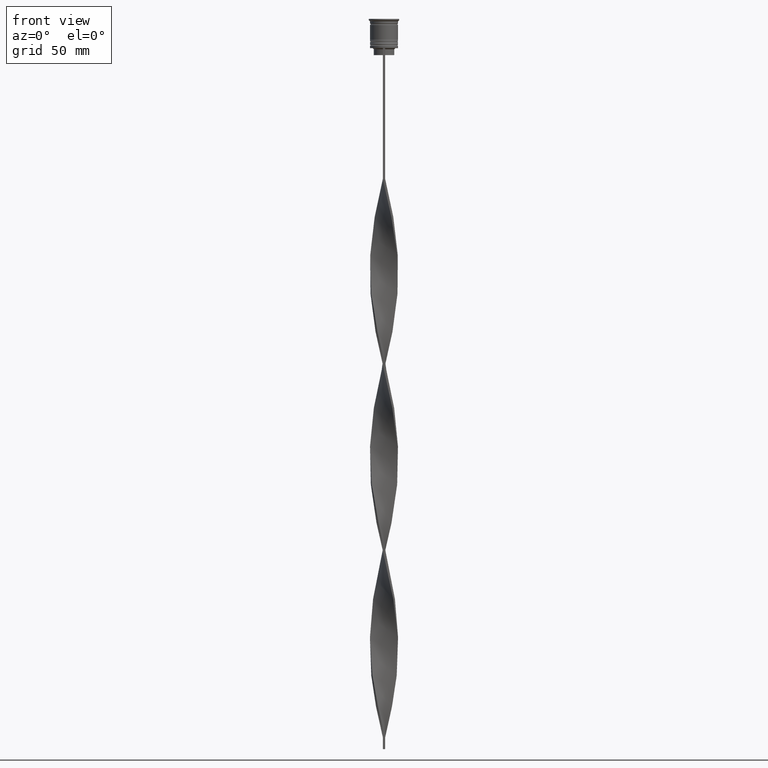
[diagram: clean part render]
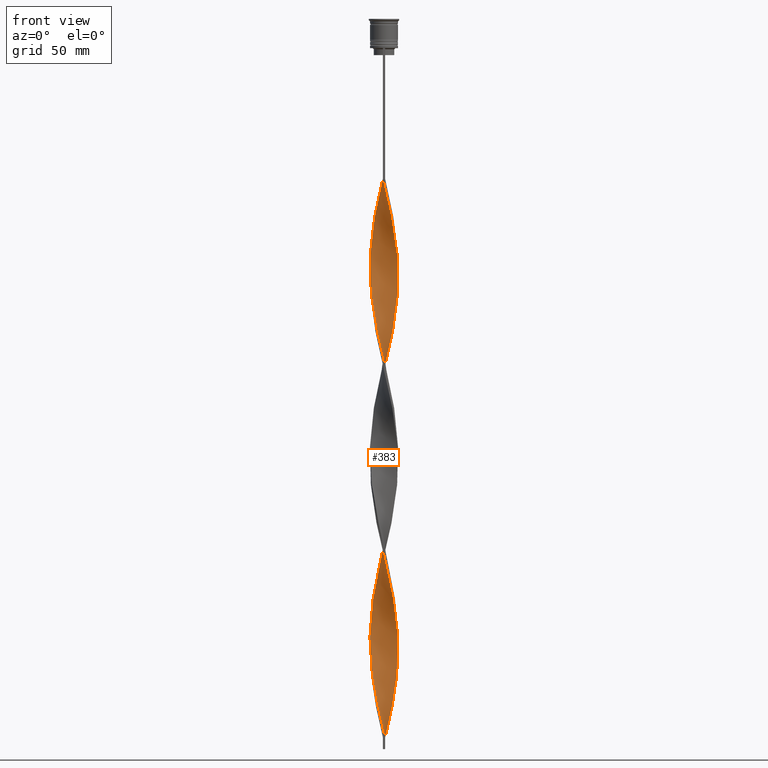
[diagram: same view with one face highlighted and labeled with its STEP entity id]
A machine part, front view. The second image highlights one B-rep face of the part: STEP entity #383.
In plain terms, the highlighted face is a freeform B-spline surface patch.
Its self-contained STEP definition (entity closure, byte-faithful):
#15 = CARTESIAN_POINT ( 'NONE',  ( 4.560209340103448028, -3.931220010942312992, -251.7333333333333769 ) ) ;
#16 = CARTESIAN_POINT ( 'NONE',  ( -3.889087296526012150, -4.596194077712557835, -128.2500000000000000 ) ) ;
#22 = CARTESIAN_POINT ( 'NONE',  ( -1.839832417264294806, -5.752351491147217111, -297.5416666666666856 ) ) ;
#34 = CARTESIAN_POINT ( 'NONE',  ( -3.122203016567365985, -5.147994592395920499, -291.5666666666667197 ) ) ;
#38 = CARTESIAN_POINT ( 'NONE',  ( -5.393717298852744868, 2.717047055421900836, -94.39166666666669414 ) ) ;
#42 = CARTESIAN_POINT ( 'NONE',  ( -5.960649146587691405, 0.9722102409477143548, -186.0083333333333258 ) ) ;
#57 = CARTESIAN_POINT ( 'NONE',  ( -3.572323752398604224, 4.869603064867704667, -82.44166666666666288 ) ) ;
#61 = CARTESIAN_POINT ( 'NONE',  ( 0.9722102409477113572, 5.960649146587691405, -146.1750000000000114 ) ) ;
#62 = CARTESIAN_POINT ( 'NONE',  ( -5.860847594958395135, 1.378573708102108331, -259.7000000000000455 ) ) ;
#78 = CARTESIAN_POINT ( 'NONE',  ( 0.5000000000000005551, 6.000000000000000000, -307.5000000000000000 ) ) ;
#100 = CARTESIAN_POINT ( 'NONE',  ( 3.931220010942312992, 4.560209340103447140, -291.5666666666667197 ) ) ;
#103 = CARTESIAN_POINT ( 'NONE',  ( -0.02778975905228496524, 6.039350853412310371, -225.8416666666666970 ) ) ;
#121 = CARTESIAN_POINT ( 'NONE',  ( -4.290116269486023981, -4.250815615339190501, -209.9083333333333599 ) ) ;
#122 = CARTESIAN_POINT ( 'NONE',  ( 5.752351491147217111, 1.839832417264293918, -118.2916666666666998 ) ) ;
#160 = CARTESIAN_POINT ( 'NONE',  ( 3.527358977712831134, -4.902271885939097906, -86.42499999999999716 ) ) ;
#195 = CARTESIAN_POINT ( 'NONE',  ( 2.329630224397261529, 5.551830600583447684, -140.1999999999999886 ) ) ;
#221 = CARTESIAN_POINT ( 'NONE',  ( 5.960649146587692293, -0.9722102409477109131, -265.6750000000000682 ) ) ;
#227 = CARTESIAN_POINT ( 'NONE',  ( -6.039350853412310371, -0.02778975905228876081, -106.3416666666666686 ) ) ;
#236 = CARTESIAN_POINT ( 'NONE',  ( -0.02778975905228496524, 6.039350853412310371, -225.8416666666666970 ) ) ;
#238 =( BOUNDED_SURFACE ( )  B_SPLINE_SURFACE ( 1, 2, ( 
 ( #1432, #514, #3020, #3966, #2687, #3278, #2318, #2702, #1731, #160, #1106, #2395, #435, #2066, #3665, #2960, #1755, #2378, #3037, #3335, #775, #1694, #3002, #3585, #739, #122, #2045, #2343, #496, #1376, #3982, #1125, #2652, #817, #3926, #1395, #195, #2087, #1772, #1454, #759, #2029, #3294, #3905, #2977, #1709, #3949, #1091, #3311, #2720, #557, #2764, #529, #3154, #837, #3398, #1814, #3126, #245, #1517, #1475, #2154, #885, #3422, #1151, #2502, #4006, #578, #1834, #3734, #923, #285, #4088, #2126, #3107, #2106, #3376, #1193, #2193, #2416, #1545, #1789, #3759, #2459, #2787, #1216, #262, #4067, #3083, #2483, #906, #1234, #2174, #3061, #4023, #3442, #308, #3686, #1497, #221, #598, #1855, #859, #4045, #2743, #1169, #3466, #3776, #621, #2812, #1880, #2436, #3711, #2240, #2526, #3170, #3507, #330, #660, #1917, #369 ),
 ( #1629, #3190, #3215, #349, #1607, #2893, #2552, #57, #3525, #1585, #986, #2876, #1278, #38, #2832, #1563, #3491, #4107, #1897, #2851, #1297, #2570, #1256, #642, #2256, #3824, #3841, #680, #1940, #3800, #16, #972, #948, #2221, #3725, #3145, #3790, #2518, #1510, #3751, #875, #2777, #3415, #1535, #1827, #2429, #4080, #851, #3098, #1807, #1868, #3480, #3770, #2802, #3390, #2167, #1248, #321, #257, #3435, #613, #546, #1227, #2496, #1490, #898, #1577, #635, #3076, #939, #591, #2209, #2118, #1848, #275, #4059, #4036, #1557, #1890, #236, #2146, #2758, #918, #1183, #2451, #2185, #1208, #571, #2476, #300, #1165, #3457, #2825, #4100, #3701, #3164, #2842, #3852, #2623, #2604, #341, #1292, #3559, #420, #964, #3208, #2232, #2906, #3244, #2251, #1624, #3500, #34, #723, #3895, #1991, #2888, #381, #3543, #1682, #696 ) ),
 .UNSPECIFIED., .F., .F., .F. ) 
 B_SPLINE_SURFACE_WITH_KNOTS ( ( 2, 2 ),
 ( 3, 2, 2, 2, 2, 2, 2, 2, 2, 2, 2, 2, 2, 2, 2, 2, 2, 2, 2, 2, 2, 2, 2, 2, 2, 2, 2, 2, 2, 2, 2, 2, 2, 2, 2, 2, 2, 2, 2, 2, 2, 2, 2, 2, 2, 2, 2, 2, 2, 2, 2, 2, 2, 2, 2, 2, 2, 2, 2, 2, 3 ),
 ( 0.000000000000000000, 1.000000000000000000 ),
 ( 0.000000000000000000, 0.01250000000000000069, 0.02500000000000000139, 0.03749999999999999861, 0.05000000000000000278, 0.06250000000000000000, 0.07499999999999999722, 0.08749999999999999445, 0.1000000000000000056, 0.1125000000000000028, 0.1250000000000000000, 0.1375000000000000111, 0.1499999999999999944, 0.1625000000000000056, 0.1749999999999999889, 0.1875000000000000000, 0.2000000000000000111, 0.2124999999999999944, 0.2250000000000000056, 0.2374999999999999889, 0.2500000000000000000, 0.2625000000000000111, 0.2750000000000000222, 0.2874999999999999778, 0.2999999999999999889, 0.3125000000000000000, 0.3250000000000000111, 0.3375000000000000222, 0.3499999999999999778, 0.3624999999999999889, 0.3750000000000000000, 0.3875000000000000111, 0.4000000000000000222, 0.4124999999999999778, 0.4249999999999999889, 0.4375000000000000000, 0.4500000000000000111, 0.4625000000000000222, 0.4749999999999999778, 0.4874999999999999889, 0.5000000000000000000, 0.5124999999999999556, 0.5250000000000000222, 0.5374999999999999778, 0.5500000000000000444, 0.5625000000000000000, 0.5749999999999999556, 0.5875000000000000222, 0.5999999999999999778, 0.6125000000000000444, 0.6250000000000000000, 0.6374999999999999556, 0.6500000000000000222, 0.6624999999999999778, 0.6750000000000000444, 0.6875000000000000000, 0.6999999999999999556, 0.7125000000000000222, 0.7249999999999999778, 0.7375000000000000444, 0.7500000000000000000 ),
 .UNSPECIFIED. ) 
 GEOMETRIC_REPRESENTATION_ITEM ( )  RATIONAL_B_SPLINE_SURFACE ( (
 ( 1.000000000000000000, 0.9969173337331279638, 1.000000000000000000, 0.9969173337331279638, 1.000000000000000000, 0.9969173337331279638, 1.000000000000000000, 0.9969173337331279638, 1.000000000000000000, 0.9969173337331279638, 1.000000000000000000, 0.9969173337331279638, 1.000000000000000000, 0.9969173337331279638, 1.000000000000000000, 0.9969173337331279638, 1.000000000000000000, 0.9969173337331279638, 1.000000000000000000, 0.9969173337331279638, 1.000000000000000000, 0.9969173337331279638, 1.000000000000000000, 0.9969173337331279638, 1.000000000000000000, 0.9969173337331279638, 1.000000000000000000, 0.9969173337331279638, 1.000000000000000000, 0.9969173337331279638, 1.000000000000000000, 0.9969173337331279638, 1.000000000000000000, 0.9969173337331279638, 1.000000000000000000, 0.9969173337331279638, 1.000000000000000000, 0.9969173337331279638, 1.000000000000000000, 0.9969173337331279638, 1.000000000000000000, 0.9969173337331279638, 1.000000000000000000, 0.9969173337331279638, 1.000000000000000000, 0.9969173337331279638, 1.000000000000000000, 0.9969173337331279638, 1.000000000000000000, 0.9969173337331279638, 1.000000000000000000, 0.9969173337331279638, 1.000000000000000000, 0.9969173337331279638, 1.000000000000000000, 0.9969173337331279638, 1.000000000000000000, 0.9969173337331279638, 1.000000000000000000, 0.9969173337331279638, 1.000000000000000000, 0.9969173337331279638, 1.000000000000000000, 0.9969173337331279638, 1.000000000000000000, 0.9969173337331279638, 1.000000000000000000, 0.9969173337331279638, 1.000000000000000000, 0.9969173337331279638, 1.000000000000000000, 0.9969173337331279638, 1.000000000000000000, 0.9969173337331279638, 1.000000000000000000, 0.9969173337331279638, 1.000000000000000000, 0.9969173337331279638, 1.000000000000000000, 0.9969173337331279638, 1.000000000000000000, 0.9969173337331279638, 1.000000000000000000, 0.9969173337331279638, 1.000000000000000000, 0.9969173337331279638, 1.000000000000000000, 0.9969173337331279638, 1.000000000000000000, 0.9969173337331279638, 1.000000000000000000, 0.9969173337331279638, 1.000000000000000000, 0.9969173337331279638, 1.000000000000000000, 0.9969173337331279638, 1.000000000000000000, 0.9969173337331279638, 1.000000000000000000, 0.9969173337331279638, 1.000000000000000000, 0.9969173337331279638, 1.000000000000000000, 0.9969173337331279638, 1.000000000000000000, 0.9969173337331279638, 1.000000000000000000, 0.9969173337331279638, 1.000000000000000000, 0.9969173337331279638, 1.000000000000000000, 0.9969173337331279638, 1.000000000000000000, 0.9969173337331279638, 1.000000000000000000, 0.9969173337331279638, 1.000000000000000000, 0.9969173337331279638, 1.000000000000000000, 0.9969173337331279638, 1.000000000000000000),
 ( 1.000000000000000000, 0.9969173337331279638, 1.000000000000000000, 0.9969173337331279638, 1.000000000000000000, 0.9969173337331279638, 1.000000000000000000, 0.9969173337331279638, 1.000000000000000000, 0.9969173337331279638, 1.000000000000000000, 0.9969173337331279638, 1.000000000000000000, 0.9969173337331279638, 1.000000000000000000, 0.9969173337331279638, 1.000000000000000000, 0.9969173337331279638, 1.000000000000000000, 0.9969173337331279638, 1.000000000000000000, 0.9969173337331279638, 1.000000000000000000, 0.9969173337331279638, 1.000000000000000000, 0.9969173337331279638, 1.000000000000000000, 0.9969173337331279638, 1.000000000000000000, 0.9969173337331279638, 1.000000000000000000, 0.9969173337331279638, 1.000000000000000000, 0.9969173337331279638, 1.000000000000000000, 0.9969173337331279638, 1.000000000000000000, 0.9969173337331279638, 1.000000000000000000, 0.9969173337331279638, 1.000000000000000000, 0.9969173337331279638, 1.000000000000000000, 0.9969173337331279638, 1.000000000000000000, 0.9969173337331279638, 1.000000000000000000, 0.9969173337331279638, 1.000000000000000000, 0.9969173337331279638, 1.000000000000000000, 0.9969173337331279638, 1.000000000000000000, 0.9969173337331279638, 1.000000000000000000, 0.9969173337331279638, 1.000000000000000000, 0.9969173337331279638, 1.000000000000000000, 0.9969173337331279638, 1.000000000000000000, 0.9969173337331279638, 1.000000000000000000, 0.9969173337331279638, 1.000000000000000000, 0.9969173337331279638, 1.000000000000000000, 0.9969173337331279638, 1.000000000000000000, 0.9969173337331279638, 1.000000000000000000, 0.9969173337331279638, 1.000000000000000000, 0.9969173337331279638, 1.000000000000000000, 0.9969173337331279638, 1.000000000000000000, 0.9969173337331279638, 1.000000000000000000, 0.9969173337331279638, 1.000000000000000000, 0.9969173337331279638, 1.000000000000000000, 0.9969173337331279638, 1.000000000000000000, 0.9969173337331279638, 1.000000000000000000, 0.9969173337331279638, 1.000000000000000000, 0.9969173337331279638, 1.000000000000000000, 0.9969173337331279638, 1.000000000000000000, 0.9969173337331279638, 1.000000000000000000, 0.9969173337331279638, 1.000000000000000000, 0.9969173337331279638, 1.000000000000000000, 0.9969173337331279638, 1.000000000000000000, 0.9969173337331279638, 1.000000000000000000, 0.9969173337331279638, 1.000000000000000000, 0.9969173337331279638, 1.000000000000000000, 0.9969173337331279638, 1.000000000000000000, 0.9969173337331279638, 1.000000000000000000, 0.9969173337331279638, 1.000000000000000000, 0.9969173337331279638, 1.000000000000000000, 0.9969173337331279638, 1.000000000000000000, 0.9969173337331279638, 1.000000000000000000, 0.9969173337331279638, 1.000000000000000000) ) ) 
 REPRESENTATION_ITEM ( '' )  SURFACE ( )  );
#245 = CARTESIAN_POINT ( 'NONE',  ( -5.847912811050710147, 1.432450960538954821, -184.0166666666666515 ) ) ;
#248 = CARTESIAN_POINT ( 'NONE',  ( 5.551830600583448572, 2.329630224397259752, -195.9666666666666686 ) ) ;
#257 = CARTESIAN_POINT ( 'NONE',  ( 6.004347276090941321, -0.4447626199438176609, -184.0166666666666515 ) ) ;
#262 = CARTESIAN_POINT ( 'NONE',  ( 2.278439736343096378, -5.573034394999980989, -239.7833333333333599 ) ) ;
#265 = CARTESIAN_POINT ( 'NONE',  ( 6.039350853412310371, 0.02778975905228534687, -186.0083333333333258 ) ) ;
#275 = CARTESIAN_POINT ( 'NONE',  ( 2.278439736343097710, 5.573034394999980101, -215.8833333333333542 ) ) ;
#277 = EDGE_CURVE ( 'NONE', #2529, #1678, #3100, .T. ) ;
#285 = CARTESIAN_POINT ( 'NONE',  ( -4.290116269486023981, -4.250815615339190501, -209.9083333333333883 ) ) ;
#290 = CARTESIAN_POINT ( 'NONE',  ( 5.573034394999980989, 2.278439736343096378, -120.2833333333333456 ) ) ;
#291 = CARTESIAN_POINT ( 'NONE',  ( 5.960649146587691405, 0.9722102409477122453, -189.9916666666667027 ) ) ;
#300 = CARTESIAN_POINT ( 'NONE',  ( -4.290116269486021316, 4.250815615339194053, -245.7583333333333826 ) ) ;
#308 = CARTESIAN_POINT ( 'NONE',  ( 5.551830600583447684, -2.329630224397261085, -259.7000000000000455 ) ) ;
#312 = CARTESIAN_POINT ( 'NONE',  ( 5.551830600583447684, -2.329630224397261085, -259.7000000000000455 ) ) ;
#314 = CARTESIAN_POINT ( 'NONE',  ( 5.393717298852746644, 2.717047055421899948, -122.2750000000000199 ) ) ;
#315 = CARTESIAN_POINT ( 'NONE',  ( -5.368484725653163814, -2.766568768664325439, -118.2916666666666998 ) ) ;
#321 = CARTESIAN_POINT ( 'NONE',  ( 5.969343698769574935, -0.9173149989399207449, -182.0250000000000341 ) ) ;
#330 = CARTESIAN_POINT ( 'NONE',  ( 1.892691680130198284, 5.735176475513732441, -301.5250000000000341 ) ) ;
#334 = CARTESIAN_POINT ( 'NONE',  ( 6.000000000000000000, -0.5000000000000001110, -108.3333333333333428 ) ) ;
#341 = CARTESIAN_POINT ( 'NONE',  ( -6.000000000000000000, -0.4999999999999994449, -267.6666666666667425 ) ) ;
#349 = CARTESIAN_POINT ( 'NONE',  ( -1.892691680130197396, 5.735176475513732441, -74.47500000000002274 ) ) ;
#368 = CARTESIAN_POINT ( 'NONE',  ( 5.119043895260433352, -3.169446260531464610, -255.7166666666666970 ) ) ;
#369 = CARTESIAN_POINT ( 'NONE',  ( 0.5000000000000005551, 6.000000000000000000, -307.5000000000000000 ) ) ;
#372 = CARTESIAN_POINT ( 'NONE',  ( -0.9722102409477146878, -5.960649146587691405, -225.8416666666666970 ) ) ;
#381 = CARTESIAN_POINT ( 'NONE',  ( -0.9173149989399231874, -5.969343698769574935, -301.5250000000000341 ) ) ;
#383 = ADVANCED_FACE ( 'NONE', ( #3608 ), #238, .T. ) ;
#387 = CARTESIAN_POINT ( 'NONE',  ( 4.290116269486021316, 4.250815615339194053, -289.5750000000000455 ) ) ;
#389 = CARTESIAN_POINT ( 'NONE',  ( -4.560209340103447140, 3.931220010942312992, -172.0666666666666629 ) ) ;
#390 = CARTESIAN_POINT ( 'NONE',  ( 0.02778975905228832713, -6.039350853412310371, -305.5083333333334394 ) ) ;
#408 = CARTESIAN_POINT ( 'NONE',  ( 5.147994592395920499, 3.122203016567364653, -283.6000000000000227 ) ) ;
#410 = CARTESIAN_POINT ( 'NONE',  ( -5.735176475513732441, 1.892691680130196064, -182.0250000000000341 ) ) ;
#411 = CARTESIAN_POINT ( 'NONE',  ( -4.290116269486021316, 4.250815615339194053, -245.7583333333333826 ) ) ;
#420 = CARTESIAN_POINT ( 'NONE',  ( -5.735176475513732441, -1.892691680130197174, -273.6416666666666515 ) ) ;
#435 = CARTESIAN_POINT ( 'NONE',  ( 4.560209340103448028, -3.931220010942312992, -92.40000000000000568 ) ) ;
#441 = DIRECTION ( 'NONE',  ( 0.000000000000000000, 1.000000000000000000, 0.000000000000000000 ) ) ;
#444 = CARTESIAN_POINT ( 'NONE',  ( 0.4999999999999995559, -2.000000000000000000, -307.5000000000000000 ) ) ;
#488 = VECTOR ( 'NONE', #441, 1000.000000000000000 ) ;
#496 = CARTESIAN_POINT ( 'NONE',  ( 5.147994592395920499, 3.122203016567364653, -124.2666666666666799 ) ) ;
#500 = CARTESIAN_POINT ( 'NONE',  ( -1.432450960538953932, 5.847912811050711035, -72.48333333333334849 ) ) ;
#514 = CARTESIAN_POINT ( 'NONE',  ( -0.02778975905228908000, -6.039350853412310371, -70.49166666666670267 ) ) ;
#529 = CARTESIAN_POINT ( 'NONE',  ( -4.560209340103447140, 3.931220010942312992, -172.0666666666666629 ) ) ;
#534 = CARTESIAN_POINT ( 'NONE',  ( -0.9173149989399231874, -5.969343698769575823, -142.1916666666666913 ) ) ;
#546 = CARTESIAN_POINT ( 'NONE',  ( 5.960649146587692293, 0.9722102409477122453, -189.9916666666667027 ) ) ;
#557 = CARTESIAN_POINT ( 'NONE',  ( -3.889087296526011261, 4.596194077712559611, -168.0833333333333712 ) ) ;
#562 = CARTESIAN_POINT ( 'NONE',  ( 2.717047055421899060, 5.393717298852746644, -213.8916666666666799 ) ) ;
#571 = CARTESIAN_POINT ( 'NONE',  ( -3.572323752398604224, 4.869603064867704667, -241.7750000000000625 ) ) ;
#578 = CARTESIAN_POINT ( 'NONE',  ( -5.393717298852745756, -2.717047055421897284, -201.9416666666667197 ) ) ;
#581 = CARTESIAN_POINT ( 'NONE',  ( -6.004347276090942209, 0.4447626199438168837, -104.3499999999999943 ) ) ;
#585 = VERTEX_POINT ( 'NONE', #2407 ) ;
#591 = CARTESIAN_POINT ( 'NONE',  ( 3.889087296526013038, 4.596194077712556947, -207.9166666666666572 ) ) ;
#597 = CARTESIAN_POINT ( 'NONE',  ( 2.717047055421899948, -5.393717298852746644, -241.7750000000000341 ) ) ;
#598 = CARTESIAN_POINT ( 'NONE',  ( 6.000000000000000000, -0.5000000000000001110, -267.6666666666667425 ) ) ;
#601 = CARTESIAN_POINT ( 'NONE',  ( -1.378573708102108331, -5.860847594958395135, -140.1999999999999886 ) ) ;
#613 = CARTESIAN_POINT ( 'NONE',  ( 6.000000000000000000, 0.4999999999999987232, -188.0000000000000000 ) ) ;
#621 = CARTESIAN_POINT ( 'NONE',  ( 5.147994592395920499, 3.122203016567364653, -283.6000000000000227 ) ) ;
#626 = CARTESIAN_POINT ( 'NONE',  ( 2.766568768664326328, 5.368484725653163814, -138.2083333333333144 ) ) ;
#627 = CARTESIAN_POINT ( 'NONE',  ( -5.147994592395921387, 3.122203016567365541, -92.40000000000000568 ) ) ;
#635 = CARTESIAN_POINT ( 'NONE',  ( 4.869603064867706443, 3.572323752398602004, -201.9416666666667197 ) ) ;
#642 = CARTESIAN_POINT ( 'NONE',  ( -5.735176475513732441, -1.892691680130197174, -114.3083333333333655 ) ) ;
#646 = CARTESIAN_POINT ( 'NONE',  ( 5.847912811050711035, -1.432450960538954376, -104.3499999999999943 ) ) ;
#647 = CARTESIAN_POINT ( 'NONE',  ( -5.969343698769575823, 0.9173149989399227433, -261.6916666666666629 ) ) ;
#653 = CARTESIAN_POINT ( 'NONE',  ( 0.5000000000000005551, 6.000000000000000000, -307.5000000000000000 ) ) ;
#660 = CARTESIAN_POINT ( 'NONE',  ( 1.432450960538954376, 5.847912811050710147, -303.5166666666666515 ) ) ;
#663 = CARTESIAN_POINT ( 'NONE',  ( 2.329630224397261529, 5.551830600583447684, -299.5333333333333030 ) ) ;
#665 = CARTESIAN_POINT ( 'NONE',  ( -3.527358977712830246, 4.902271885939098794, -166.0916666666666970 ) ) ;
#666 = CARTESIAN_POINT ( 'NONE',  ( -2.329630224397260641, 5.551830600583447684, -235.8000000000000114 ) ) ;
#680 = CARTESIAN_POINT ( 'NONE',  ( -4.869603064867704667, -3.572323752398604224, -122.2750000000000341 ) ) ;
#686 = CARTESIAN_POINT ( 'NONE',  ( -0.4447626199438157180, 6.004347276090942209, -152.1500000000000057 ) ) ;
#687 = CARTESIAN_POINT ( 'NONE',  ( -6.000000000000000000, -0.4999999999999994449, -267.6666666666667425 ) ) ;
#696 = CARTESIAN_POINT ( 'NONE',  ( 0.4999999999999990563, -6.000000000000000000, -307.5000000000000000 ) ) ;
#702 = CARTESIAN_POINT ( 'NONE',  ( -2.766568768664325884, 5.368484725653163814, -237.7916666666667140 ) ) ;
#723 = CARTESIAN_POINT ( 'NONE',  ( -2.717047055421900836, -5.393717298852744868, -293.5583333333334508 ) ) ;
#737 = CARTESIAN_POINT ( 'NONE',  ( 0.9722102409477113572, 5.960649146587691405, -305.5083333333334394 ) ) ;
#739 = CARTESIAN_POINT ( 'NONE',  ( 5.860847594958396023, 1.378573708102107442, -116.3000000000000114 ) ) ;
#759 = CARTESIAN_POINT ( 'NONE',  ( 0.5000000000000005551, 6.000000000000000000, -148.1666666666666572 ) ) ;
#767 = CARTESIAN_POINT ( 'NONE',  ( 0.4999999999999990563, -6.000000000000000000, -307.5000000000000000 ) ) ;
#775 = CARTESIAN_POINT ( 'NONE',  ( 6.000000000000000000, -0.5000000000000001110, -108.3333333333333428 ) ) ;
#817 = CARTESIAN_POINT ( 'NONE',  ( 3.572323752398604224, 4.869603064867703779, -134.2249999999999943 ) ) ;
#837 = CARTESIAN_POINT ( 'NONE',  ( -5.119043895260433352, 3.169446260531465498, -176.0500000000000114 ) ) ;
#841 = CARTESIAN_POINT ( 'NONE',  ( 3.122203016567365541, -5.147994592395921387, -84.43333333333333712 ) ) ;
#851 = CARTESIAN_POINT ( 'NONE',  ( 3.572323752398603336, -4.869603064867704667, -162.1083333333333769 ) ) ;
#859 = CARTESIAN_POINT ( 'NONE',  ( 6.004347276090942209, 0.4447626199438162731, -271.6499999999999773 ) ) ;
#863 = CARTESIAN_POINT ( 'NONE',  ( 5.969343698769575823, -0.9173149989399207449, -182.0250000000000341 ) ) ;
#875 = CARTESIAN_POINT ( 'NONE',  ( 0.4999999999999990563, -6.000000000000000000, -148.1666666666666572 ) ) ;
#885 = CARTESIAN_POINT ( 'NONE',  ( -6.004347276090942209, -0.4447626199438153849, -191.9833333333333485 ) ) ;
#889 = CARTESIAN_POINT ( 'NONE',  ( -1.839832417264294806, -5.752351491147217111, -138.2083333333333144 ) ) ;
#898 = CARTESIAN_POINT ( 'NONE',  ( 5.368484725653162926, 2.766568768664326772, -197.9583333333333997 ) ) ;
#905 = CARTESIAN_POINT ( 'NONE',  ( 1.839832417264294362, -5.752351491147217111, -237.7916666666667140 ) ) ;
#906 = CARTESIAN_POINT ( 'NONE',  ( 3.889087296526011706, -4.596194077712558723, -247.7500000000000284 ) ) ;
#911 = CARTESIAN_POINT ( 'NONE',  ( -5.752351491147217111, 1.839832417264294362, -98.37500000000001421 ) ) ;
#918 = CARTESIAN_POINT ( 'NONE',  ( -1.432450960538953932, 5.847912811050711035, -231.8166666666666629 ) ) ;
#923 = CARTESIAN_POINT ( 'NONE',  ( -4.596194077712559611, -3.889087296526010373, -207.9166666666666572 ) ) ;
#926 = CARTESIAN_POINT ( 'NONE',  ( 3.931220010942312992, 4.560209340103447140, -132.2333333333333485 ) ) ;
#927 = CARTESIAN_POINT ( 'NONE',  ( 4.560209340103449804, 3.931220010942311216, -203.9333333333333655 ) ) ;
#939 = CARTESIAN_POINT ( 'NONE',  ( 4.250815615339193165, 4.290116269486022205, -205.9250000000000114 ) ) ;
#948 = CARTESIAN_POINT ( 'NONE',  ( -3.122203016567365985, -5.147994592395920499, -132.2333333333333485 ) ) ;
#952 = CARTESIAN_POINT ( 'NONE',  ( 5.847912811050711035, -1.432450960538954376, -263.6833333333333940 ) ) ;
#954 = CARTESIAN_POINT ( 'NONE',  ( -5.573034394999980101, 2.278439736343096822, -255.7166666666666970 ) ) ;
#964 = CARTESIAN_POINT ( 'NONE',  ( -5.551830600583448572, -2.329630224397260641, -275.6333333333333258 ) ) ;
#972 = CARTESIAN_POINT ( 'NONE',  ( -3.527358977712831134, -4.902271885939097906, -130.2416666666667027 ) ) ;
#974 = CARTESIAN_POINT ( 'NONE',  ( 5.393717298852746644, 2.717047055421899948, -281.6083333333334053 ) ) ;
#976 = CARTESIAN_POINT ( 'NONE',  ( 5.368484725653163814, -2.766568768664325884, -98.37500000000001421 ) ) ;
#986 = CARTESIAN_POINT ( 'NONE',  ( -4.596194077712558723, 3.889087296526011706, -88.41666666666667140 ) ) ;
#990 = CARTESIAN_POINT ( 'NONE',  ( -3.931220010942313881, -4.560209340103447140, -211.9000000000000057 ) ) ;
#991 = CARTESIAN_POINT ( 'NONE',  ( -5.368484725653163814, -2.766568768664325439, -277.6250000000000568 ) ) ;
#1009 = CARTESIAN_POINT ( 'NONE',  ( 0.9173149989399222992, -5.969343698769575823, -233.8083333333333371 ) ) ;
#1010 = CARTESIAN_POINT ( 'NONE',  ( -3.931220010942312992, 4.560209340103448028, -243.7666666666666799 ) ) ;
#1027 = CARTESIAN_POINT ( 'NONE',  ( -2.278439736343095934, 5.573034394999980989, -160.1166666666666742 ) ) ;
#1028 = CARTESIAN_POINT ( 'NONE',  ( 0.4447626199438179939, 6.004347276090941321, -223.8500000000000227 ) ) ;
#1045 = CARTESIAN_POINT ( 'NONE',  ( 6.004347276090942209, 0.4447626199438162731, -271.6499999999999773 ) ) ;
#1047 = CARTESIAN_POINT ( 'NONE',  ( -5.147994592395921387, -3.122203016567363765, -203.9333333333333655 ) ) ;
#1068 = CARTESIAN_POINT ( 'NONE',  ( -3.169446260531465498, -5.119043895260433352, -215.8833333333333542 ) ) ;
#1091 = CARTESIAN_POINT ( 'NONE',  ( -2.717047055421899060, 5.393717298852745756, -162.1083333333333769 ) ) ;
#1106 = CARTESIAN_POINT ( 'NONE',  ( 3.889087296526011706, -4.596194077712558723, -88.41666666666667140 ) ) ;
#1108 = EDGE_CURVE ( 'NONE', #585, #2408, #2493, .T. ) ;
#1111 = CARTESIAN_POINT ( 'NONE',  ( -1.892691680130197396, 5.735176475513732441, -74.47500000000000853 ) ) ;
#1125 = CARTESIAN_POINT ( 'NONE',  ( 4.290116269486021316, 4.250815615339194053, -130.2416666666667027 ) ) ;
#1131 = CARTESIAN_POINT ( 'NONE',  ( -3.931220010942312992, 4.560209340103448028, -84.43333333333333712 ) ) ;
#1151 = CARTESIAN_POINT ( 'NONE',  ( -5.860847594958396023, -1.378573708102106776, -195.9666666666666686 ) ) ;
#1155 = CARTESIAN_POINT ( 'NONE',  ( -4.902271885939097906, 3.527358977712831134, -90.40833333333335986 ) ) ;
#1165 = CARTESIAN_POINT ( 'NONE',  ( -4.596194077712558723, 3.889087296526011706, -247.7500000000000284 ) ) ;
#1169 = CARTESIAN_POINT ( 'NONE',  ( 5.752351491147217111, 1.839832417264293918, -277.6250000000000568 ) ) ;
#1171 = CARTESIAN_POINT ( 'NONE',  ( 5.735176475513732441, -1.892691680130197840, -261.6916666666666629 ) ) ;
#1174 = CARTESIAN_POINT ( 'NONE',  ( -5.393717298852745756, 2.717047055421900836, -94.39166666666669414 ) ) ;
#1183 = CARTESIAN_POINT ( 'NONE',  ( -1.892691680130197396, 5.735176475513732441, -233.8083333333333371 ) ) ;
#1193 = CARTESIAN_POINT ( 'NONE',  ( -1.892691680130196286, -5.735176475513732441, -221.8583333333333769 ) ) ;
#1198 = CARTESIAN_POINT ( 'NONE',  ( 4.902271885939097906, 3.527358977712830246, -126.2583333333333400 ) ) ;
#1199 = CARTESIAN_POINT ( 'NONE',  ( 0.9722102409477098028, -5.960649146587691405, -150.1583333333333599 ) ) ;
#1204 = ORIENTED_EDGE ( 'NONE', *, *, #1108, .F. ) ;
#1208 = CARTESIAN_POINT ( 'NONE',  ( -3.169446260531464166, 5.119043895260434240, -239.7833333333333599 ) ) ;
#1216 = CARTESIAN_POINT ( 'NONE',  ( 1.839832417264294362, -5.752351491147217111, -237.7916666666667140 ) ) ;
#1220 = CARTESIAN_POINT ( 'NONE',  ( -6.000000000000000000, -0.4999999999999994449, -108.3333333333333428 ) ) ;
#1227 = CARTESIAN_POINT ( 'NONE',  ( 5.847912811050711035, 1.432450960538952600, -191.9833333333333485 ) ) ;
#1234 = CARTESIAN_POINT ( 'NONE',  ( 4.250815615339194053, -4.290116269486021316, -249.7416666666666742 ) ) ;
#1238 = CARTESIAN_POINT ( 'NONE',  ( 4.596194077712558723, 3.889087296526011261, -128.2500000000000000 ) ) ;
#1239 = CARTESIAN_POINT ( 'NONE',  ( 5.119043895260435129, 3.169446260531463722, -199.9500000000000171 ) ) ;
#1248 = CARTESIAN_POINT ( 'NONE',  ( 5.860847594958395135, -1.378573708102108775, -180.0333333333333599 ) ) ;
#1256 = CARTESIAN_POINT ( 'NONE',  ( -5.847912811050711035, -1.432450960538953488, -112.3166666666666771 ) ) ;
#1259 = CARTESIAN_POINT ( 'NONE',  ( -5.860847594958395135, 1.378573708102108331, -100.3666666666666742 ) ) ;
#1278 = CARTESIAN_POINT ( 'NONE',  ( -5.147994592395921387, 3.122203016567365541, -92.40000000000000568 ) ) ;
#1292 = CARTESIAN_POINT ( 'NONE',  ( -5.960649146587692293, -0.9722102409477103580, -269.6583333333334167 ) ) ;
#1297 = CARTESIAN_POINT ( 'NONE',  ( -6.000000000000000000, -0.4999999999999994449, -108.3333333333333428 ) ) ;
#1301 = CARTESIAN_POINT ( 'NONE',  ( 2.329630224397261529, 5.551830600583447684, -140.1999999999999886 ) ) ;
#1302 = CARTESIAN_POINT ( 'NONE',  ( -3.169446260531464166, 5.119043895260434240, -239.7833333333333599 ) ) ;
#1316 = CARTESIAN_POINT ( 'NONE',  ( -5.573034394999981878, -2.278439736343095934, -199.9500000000000171 ) ) ;
#1317 = CARTESIAN_POINT ( 'NONE',  ( -5.847912811050711035, -1.432450960538953488, -271.6499999999999773 ) ) ;
#1336 = CARTESIAN_POINT ( 'NONE',  ( 0.5000000000000005551, 6.000000000000000000, -148.1666666666666572 ) ) ;
#1337 = CARTESIAN_POINT ( 'NONE',  ( -4.250815615339194053, -4.290116269486020428, -285.5916666666666970 ) ) ;
#1357 = CARTESIAN_POINT ( 'NONE',  ( 2.766568768664326328, 5.368484725653163814, -297.5416666666666856 ) ) ;
#1359 = CARTESIAN_POINT ( 'NONE',  ( -5.969343698769576712, -0.9173149989399185245, -193.9750000000000227 ) ) ;
#1360 = CARTESIAN_POINT ( 'NONE',  ( -5.119043895260434240, -3.169446260531464166, -279.6166666666666742 ) ) ;
#1372 = CARTESIAN_POINT ( 'NONE',  ( 5.368484725653163814, -2.766568768664325884, -257.7083333333333144 ) ) ;
#1375 = CARTESIAN_POINT ( 'NONE',  ( -3.572323752398603780, -4.869603064867703779, -213.8916666666666799 ) ) ;
#1376 = CARTESIAN_POINT ( 'NONE',  ( 4.902271885939097906, 3.527358977712830246, -126.2583333333333258 ) ) ;
#1393 = CARTESIAN_POINT ( 'NONE',  ( -0.4999999999999997780, 6.000000000000000888, -68.50000000000000000 ) ) ;
#1395 = CARTESIAN_POINT ( 'NONE',  ( 2.766568768664326328, 5.368484725653163814, -138.2083333333333144 ) ) ;
#1432 = CARTESIAN_POINT ( 'NONE',  ( -0.4999999999999997780, -6.000000000000000000, -68.50000000000000000 ) ) ;
#1437 = CARTESIAN_POINT ( 'NONE',  ( 0.4447626199438165506, -6.004347276090942209, -72.48333333333334849 ) ) ;
#1454 = CARTESIAN_POINT ( 'NONE',  ( 0.9722102409477113572, 5.960649146587692293, -146.1749999999999829 ) ) ;
#1460 = CARTESIAN_POINT ( 'NONE',  ( -4.290116269486021316, 4.250815615339194053, -86.42499999999999716 ) ) ;
#1475 = CARTESIAN_POINT ( 'NONE',  ( -6.000000000000000000, 0.5000000000000008882, -188.0000000000000000 ) ) ;
#1479 = CARTESIAN_POINT ( 'NONE',  ( 3.889087296526011706, -4.596194077712558723, -88.41666666666667140 ) ) ;
#1480 = CARTESIAN_POINT ( 'NONE',  ( 4.902271885939097018, -3.527358977712834243, -170.0750000000000455 ) ) ;
#1482 = EDGE_CURVE ( 'NONE', #2408, #1678, #1569, .T. ) ;
#1490 = CARTESIAN_POINT ( 'NONE',  ( 5.551830600583448572, 2.329630224397259752, -195.9666666666666686 ) ) ;
#1497 = CARTESIAN_POINT ( 'NONE',  ( 5.847912811050711035, -1.432450960538954376, -263.6833333333333940 ) ) ;
#1500 = CARTESIAN_POINT ( 'NONE',  ( 1.839832417264297693, 5.752351491147215334, -217.8750000000000284 ) ) ;
#1510 = CARTESIAN_POINT ( 'NONE',  ( -0.4447626199438173278, -6.004347276090941321, -144.1833333333333371 ) ) ;
#1517 = CARTESIAN_POINT ( 'NONE',  ( -5.960649146587692293, 0.9722102409477144658, -186.0083333333333258 ) ) ;
#1522 = CARTESIAN_POINT ( 'NONE',  ( 6.004347276090941321, -0.4447626199438176609, -184.0166666666666515 ) ) ;
#1535 = CARTESIAN_POINT ( 'NONE',  ( 1.892691680130196952, -5.735176475513732441, -154.1416666666666799 ) ) ;
#1544 = CARTESIAN_POINT ( 'NONE',  ( 3.122203016567365541, -5.147994592395921387, -243.7666666666666799 ) ) ;
#1545 = CARTESIAN_POINT ( 'NONE',  ( -0.4999999999999997780, -6.000000000000000000, -227.8333333333333428 ) ) ;
#1549 = CARTESIAN_POINT ( 'NONE',  ( 5.735176475513733330, 1.892691680130193843, -193.9750000000000227 ) ) ;
#1557 = CARTESIAN_POINT ( 'NONE',  ( 0.9173149989399209669, 5.969343698769574935, -221.8583333333333769 ) ) ;
#1563 = CARTESIAN_POINT ( 'NONE',  ( -5.752351491147217111, 1.839832417264294362, -98.37500000000002842 ) ) ;
#1567 = CARTESIAN_POINT ( 'NONE',  ( -5.735176475513732441, -1.892691680130197174, -114.3083333333333655 ) ) ;
#1569 = B_SPLINE_CURVE_WITH_KNOTS ( 'NONE', 3,
 ( #2991, #2057, #444, #767 ),
 .UNSPECIFIED., .F., .F.,
 ( 4, 4 ),
 ( 0.000000000000000000, 1.000000000000000000 ),
 .UNSPECIFIED. ) ;
#1577 = CARTESIAN_POINT ( 'NONE',  ( 5.119043895260435129, 3.169446260531463722, -199.9500000000000171 ) ) ;
#1585 = CARTESIAN_POINT ( 'NONE',  ( -4.290116269486021316, 4.250815615339194053, -86.42499999999999716 ) ) ;
#1590 = CARTESIAN_POINT ( 'NONE',  ( 6.039350853412310371, -0.02778975905228946511, -110.3250000000000171 ) ) ;
#1591 = CARTESIAN_POINT ( 'NONE',  ( -6.039350853412310371, -0.02778975905228876081, -265.6750000000000682 ) ) ;
#1607 = CARTESIAN_POINT ( 'NONE',  ( -2.329630224397260641, 5.551830600583447684, -76.46666666666666856 ) ) ;
#1613 = CARTESIAN_POINT ( 'NONE',  ( 1.432450960538954376, 5.847912811050710147, -144.1833333333333371 ) ) ;
#1624 = CARTESIAN_POINT ( 'NONE',  ( -3.889087296526012150, -4.596194077712557835, -287.5833333333333712 ) ) ;
#1629 = CARTESIAN_POINT ( 'NONE',  ( -0.4999999999999997780, 6.000000000000000000, -68.50000000000000000 ) ) ;
#1633 = CARTESIAN_POINT ( 'NONE',  ( -0.4999999999999997780, -6.000000000000000000, -227.8333333333333428 ) ) ;
#1634 = CARTESIAN_POINT ( 'NONE',  ( 0.4999999999999990563, -6.000000000000000000, -307.5000000000000000 ) ) ;
#1649 = CARTESIAN_POINT ( 'NONE',  ( 5.860847594958396023, 1.378573708102107442, -275.6333333333333258 ) ) ;
#1674 = CARTESIAN_POINT ( 'NONE',  ( -6.039350853412310371, 0.02778975905228745977, -189.9916666666667027 ) ) ;
#1675 = CARTESIAN_POINT ( 'NONE',  ( -5.960649146587691405, -0.9722102409477102469, -269.6583333333334167 ) ) ;
#1678 = VERTEX_POINT ( 'NONE', #1881 ) ;
#1682 = CARTESIAN_POINT ( 'NONE',  ( 0.02778975905228832713, -6.039350853412310371, -305.5083333333334963 ) ) ;
#1693 = CARTESIAN_POINT ( 'NONE',  ( -4.869603064867703779, 3.572323752398603336, -174.0583333333333371 ) ) ;
#1694 = CARTESIAN_POINT ( 'NONE',  ( 6.039350853412310371, -0.02778975905228946511, -110.3250000000000171 ) ) ;
#1709 = CARTESIAN_POINT ( 'NONE',  ( -1.839832417264293252, 5.752351491147217999, -158.1250000000000000 ) ) ;
#1731 = CARTESIAN_POINT ( 'NONE',  ( 3.122203016567365541, -5.147994592395921387, -84.43333333333333712 ) ) ;
#1736 = CARTESIAN_POINT ( 'NONE',  ( 2.278439736343096378, -5.573034394999980989, -80.45000000000000284 ) ) ;
#1755 = CARTESIAN_POINT ( 'NONE',  ( 5.551830600583447684, -2.329630224397261085, -100.3666666666666742 ) ) ;
#1772 = CARTESIAN_POINT ( 'NONE',  ( 1.432450960538954376, 5.847912811050710147, -144.1833333333333371 ) ) ;
#1789 = CARTESIAN_POINT ( 'NONE',  ( -0.02778975905228908000, -6.039350853412310371, -229.8250000000000455 ) ) ;
#1795 = CARTESIAN_POINT ( 'NONE',  ( 2.329630224397260196, -5.551830600583448572, -156.1333333333333542 ) ) ;
#1807 = CARTESIAN_POINT ( 'NONE',  ( 4.290116269486020428, -4.250815615339194942, -166.0916666666666686 ) ) ;
#1814 = CARTESIAN_POINT ( 'NONE',  ( -5.551830600583447684, 2.329630224397261973, -180.0333333333333599 ) ) ;
#1818 = CARTESIAN_POINT ( 'NONE',  ( 5.847912811050711035, 1.432450960538952600, -191.9833333333333485 ) ) ;
#1827 = CARTESIAN_POINT ( 'NONE',  ( 2.329630224397260196, -5.551830600583448572, -156.1333333333333542 ) ) ;
#1834 = CARTESIAN_POINT ( 'NONE',  ( -5.147994592395921387, -3.122203016567363765, -203.9333333333333655 ) ) ;
#1837 = CARTESIAN_POINT ( 'NONE',  ( 5.860847594958396023, 1.378573708102107442, -116.3000000000000114 ) ) ;
#1838 = CARTESIAN_POINT ( 'NONE',  ( 3.931220010942312104, -4.560209340103448916, -164.1000000000000227 ) ) ;
#1848 = CARTESIAN_POINT ( 'NONE',  ( 2.717047055421899060, 5.393717298852745756, -213.8916666666666799 ) ) ;
#1855 = CARTESIAN_POINT ( 'NONE',  ( 6.039350853412310371, -0.02778975905228946511, -269.6583333333334167 ) ) ;
#1858 = CARTESIAN_POINT ( 'NONE',  ( 5.860847594958395135, -1.378573708102108775, -180.0333333333333599 ) ) ;
#1868 = CARTESIAN_POINT ( 'NONE',  ( 4.596194077712557835, -3.889087296526013038, -168.0833333333333712 ) ) ;
#1880 = CARTESIAN_POINT ( 'NONE',  ( 4.596194077712558723, 3.889087296526011261, -287.5833333333333712 ) ) ;
#1881 = CARTESIAN_POINT ( 'NONE',  ( 0.4999999999999990563, -6.000000000000000000, -307.5000000000000000 ) ) ;
#1884 = CARTESIAN_POINT ( 'NONE',  ( 3.122203016567366873, 5.147994592395920499, -211.9000000000000057 ) ) ;
#1890 = CARTESIAN_POINT ( 'NONE',  ( 0.4447626199438179939, 6.004347276090941321, -223.8500000000000227 ) ) ;
#1897 = CARTESIAN_POINT ( 'NONE',  ( -6.004347276090942209, 0.4447626199438168837, -104.3499999999999943 ) ) ;
#1902 = CARTESIAN_POINT ( 'NONE',  ( -6.004347276090942209, 0.4447626199438168837, -263.6833333333333940 ) ) ;
#1917 = CARTESIAN_POINT ( 'NONE',  ( 0.9722102409477113572, 5.960649146587692293, -305.5083333333334963 ) ) ;
#1922 = CARTESIAN_POINT ( 'NONE',  ( -2.717047055421899060, 5.393717298852746644, -162.1083333333333769 ) ) ;
#1923 = CARTESIAN_POINT ( 'NONE',  ( -5.393717298852745756, 2.717047055421900836, -253.7250000000000227 ) ) ;
#1940 = CARTESIAN_POINT ( 'NONE',  ( -4.560209340103448916, -3.931220010942312104, -124.2666666666666799 ) ) ;
#1946 = CARTESIAN_POINT ( 'NONE',  ( 0.02778975905228979124, 6.039350853412310371, -150.1583333333333599 ) ) ;
#1947 = CARTESIAN_POINT ( 'NONE',  ( 0.9173149989399209669, 5.969343698769575823, -221.8583333333333769 ) ) ;
#1963 = CARTESIAN_POINT ( 'NONE',  ( 4.596194077712558723, 3.889087296526011261, -287.5833333333333712 ) ) ;
#1965 = CARTESIAN_POINT ( 'NONE',  ( -6.000000000000000000, 0.5000000000000008882, -188.0000000000000000 ) ) ;
#1966 = CARTESIAN_POINT ( 'NONE',  ( -5.147994592395921387, 3.122203016567365541, -251.7333333333333769 ) ) ;
#1981 = CARTESIAN_POINT ( 'NONE',  ( 5.969343698769575823, 0.9173149989399217441, -273.6416666666666515 ) ) ;
#1983 = CARTESIAN_POINT ( 'NONE',  ( -4.250815615339191389, 4.290116269486023981, -170.0750000000000455 ) ) ;
#1991 = CARTESIAN_POINT ( 'NONE',  ( -1.839832417264294806, -5.752351491147217111, -297.5416666666666856 ) ) ;
#2029 = CARTESIAN_POINT ( 'NONE',  ( 0.02778975905228979124, 6.039350853412310371, -150.1583333333333599 ) ) ;
#2045 = CARTESIAN_POINT ( 'NONE',  ( 5.573034394999980989, 2.278439736343096378, -120.2833333333333456 ) ) ;
#2057 = CARTESIAN_POINT ( 'NONE',  ( 0.5000000000000000000, 2.000000000000000000, -307.5000000000000000 ) ) ;
#2066 = CARTESIAN_POINT ( 'NONE',  ( 4.869603064867703779, -3.572323752398604224, -94.39166666666669414 ) ) ;
#2087 = CARTESIAN_POINT ( 'NONE',  ( 1.892691680130198284, 5.735176475513732441, -142.1916666666666913 ) ) ;
#2091 = CARTESIAN_POINT ( 'NONE',  ( -2.766568768664325884, 5.368484725653163814, -78.45833333333334281 ) ) ;
#2106 = CARTESIAN_POINT ( 'NONE',  ( -2.766568768664328992, -5.368484725653162037, -217.8750000000000568 ) ) ;
#2109 = CARTESIAN_POINT ( 'NONE',  ( 3.527358977712831134, -4.902271885939097906, -86.42499999999999716 ) ) ;
#2110 = CARTESIAN_POINT ( 'NONE',  ( 1.432450960538953044, -5.847912811050711035, -152.1500000000000057 ) ) ;
#2118 = CARTESIAN_POINT ( 'NONE',  ( 3.122203016567366873, 5.147994592395920499, -211.9000000000000057 ) ) ;
#2126 = CARTESIAN_POINT ( 'NONE',  ( -3.572323752398603336, -4.869603064867704667, -213.8916666666666799 ) ) ;
#2133 = CARTESIAN_POINT ( 'NONE',  ( 4.250815615339193165, 4.290116269486022205, -205.9250000000000114 ) ) ;
#2146 = CARTESIAN_POINT ( 'NONE',  ( -0.4999999999999997780, 6.000000000000000000, -227.8333333333333428 ) ) ;
#2154 = CARTESIAN_POINT ( 'NONE',  ( -6.039350853412310371, 0.02778975905228745977, -189.9916666666667027 ) ) ;
#2158 = CARTESIAN_POINT ( 'NONE',  ( 4.290116269486021316, 4.250815615339194053, -130.2416666666667027 ) ) ;
#2159 = CARTESIAN_POINT ( 'NONE',  ( -4.250815615339194053, -4.290116269486020428, -126.2583333333333400 ) ) ;
#2167 = CARTESIAN_POINT ( 'NONE',  ( 5.752351491147215334, -1.839832417264297471, -178.0416666666667140 ) ) ;
#2173 = CARTESIAN_POINT ( 'NONE',  ( 2.278439736343096378, -5.573034394999980989, -239.7833333333333599 ) ) ;
#2174 = CARTESIAN_POINT ( 'NONE',  ( 4.560209340103448028, -3.931220010942312992, -251.7333333333333769 ) ) ;
#2176 = EDGE_LOOP ( 'NONE', ( #2834, #3827, #2597, #1204 ) ) ;
#2177 = CARTESIAN_POINT ( 'NONE',  ( -4.869603064867703779, -3.572323752398604224, -122.2750000000000199 ) ) ;
#2185 = CARTESIAN_POINT ( 'NONE',  ( -2.766568768664325884, 5.368484725653163814, -237.7916666666667140 ) ) ;
#2193 = CARTESIAN_POINT ( 'NONE',  ( -1.432450960538955265, -5.847912811050710147, -223.8500000000000227 ) ) ;
#2197 = CARTESIAN_POINT ( 'NONE',  ( 3.572323752398604224, 4.869603064867703779, -134.2250000000000227 ) ) ;
#2198 = CARTESIAN_POINT ( 'NONE',  ( -3.527358977712831134, -4.902271885939097906, -130.2416666666667027 ) ) ;
#2209 = CARTESIAN_POINT ( 'NONE',  ( 3.527358977712834243, 4.902271885939096130, -209.9083333333333883 ) ) ;
#2221 = CARTESIAN_POINT ( 'NONE',  ( -2.717047055421900836, -5.393717298852744868, -134.2249999999999943 ) ) ;
#2225 = CARTESIAN_POINT ( 'NONE',  ( -1.378573708102108331, -5.860847594958395135, -299.5333333333333030 ) ) ;
#2232 = CARTESIAN_POINT ( 'NONE',  ( -5.119043895260434240, -3.169446260531464166, -279.6166666666666742 ) ) ;
#2240 = CARTESIAN_POINT ( 'NONE',  ( 3.572323752398604224, 4.869603064867703779, -293.5583333333334508 ) ) ;
#2251 = CARTESIAN_POINT ( 'NONE',  ( -4.250815615339194053, -4.290116269486020428, -285.5916666666666401 ) ) ;
#2256 = CARTESIAN_POINT ( 'NONE',  ( -5.551830600583448572, -2.329630224397260641, -116.3000000000000114 ) ) ;
#2260 = CARTESIAN_POINT ( 'NONE',  ( -0.9173149989399216331, 5.969343698769575823, -154.1416666666666799 ) ) ;
#2279 = CARTESIAN_POINT ( 'NONE',  ( 4.902271885939097906, 3.527358977712830246, -285.5916666666666970 ) ) ;
#2281 = CARTESIAN_POINT ( 'NONE',  ( -5.752351491147217111, 1.839832417264294362, -257.7083333333333144 ) ) ;
#2297 = CARTESIAN_POINT ( 'NONE',  ( -3.889087296526011261, 4.596194077712559611, -168.0833333333333712 ) ) ;
#2298 = CARTESIAN_POINT ( 'NONE',  ( -4.869603064867703779, -3.572323752398604224, -281.6083333333334053 ) ) ;
#2317 = CARTESIAN_POINT ( 'NONE',  ( -4.596194077712559611, -3.889087296526010373, -207.9166666666666572 ) ) ;
#2318 = CARTESIAN_POINT ( 'NONE',  ( 2.278439736343096378, -5.573034394999980989, -80.45000000000000284 ) ) ;
#2326 = LINE ( 'NONE', #3592, #488 ) ;
#2343 = CARTESIAN_POINT ( 'NONE',  ( 5.393717298852745756, 2.717047055421899948, -122.2750000000000341 ) ) ;
#2378 = CARTESIAN_POINT ( 'NONE',  ( 5.735176475513732441, -1.892691680130197840, -102.3583333333333343 ) ) ;
#2395 = CARTESIAN_POINT ( 'NONE',  ( 4.250815615339194053, -4.290116269486021316, -90.40833333333334565 ) ) ;
#2400 = CARTESIAN_POINT ( 'NONE',  ( -0.4999999999999997780, 6.000000000000000888, -68.50000000000000000 ) ) ;
#2407 = CARTESIAN_POINT ( 'NONE',  ( -0.4999999999999997780, -6.000000000000000000, -68.50000000000000000 ) ) ;
#2408 = VERTEX_POINT ( 'NONE', #653 ) ;
#2416 = CARTESIAN_POINT ( 'NONE',  ( -0.9722102409477147988, -5.960649146587692293, -225.8416666666666970 ) ) ;
#2419 = CARTESIAN_POINT ( 'NONE',  ( -0.02778975905228908347, -6.039350853412310371, -70.49166666666668846 ) ) ;
#2429 = CARTESIAN_POINT ( 'NONE',  ( 2.766568768664324995, -5.368484725653164702, -158.1250000000000000 ) ) ;
#2436 = CARTESIAN_POINT ( 'NONE',  ( 4.290116269486021316, 4.250815615339194053, -289.5750000000000455 ) ) ;
#2441 = CARTESIAN_POINT ( 'NONE',  ( -5.847912811050711035, -1.432450960538953488, -112.3166666666666771 ) ) ;
#2451 = CARTESIAN_POINT ( 'NONE',  ( -2.329630224397260641, 5.551830600583447684, -235.8000000000000114 ) ) ;
#2459 = CARTESIAN_POINT ( 'NONE',  ( 0.9173149989399222992, -5.969343698769574935, -233.8083333333333371 ) ) ;
#2465 = CARTESIAN_POINT ( 'NONE',  ( 3.572323752398603780, -4.869603064867703779, -162.1083333333333769 ) ) ;
#2476 = CARTESIAN_POINT ( 'NONE',  ( -3.931220010942312992, 4.560209340103448028, -243.7666666666666799 ) ) ;
#2483 = CARTESIAN_POINT ( 'NONE',  ( 3.527358977712831134, -4.902271885939097906, -245.7583333333333826 ) ) ;
#2488 = CARTESIAN_POINT ( 'NONE',  ( -5.969343698769575823, 0.9173149989399227433, -102.3583333333333485 ) ) ;
#2493 =( BOUNDED_CURVE ( )  B_SPLINE_CURVE ( 2, ( #3024, #2419, #1437, #3690, #2706, #3714, #1736, #3005, #841, #2109, #1479, #4026, #3828, #2507, #3779, #976, #3132, #3088, #646, #3446, #334, #1590, #2767, #2530, #1837, #4048, #290, #314, #4092, #1198, #1238, #2158, #926, #2197, #3471, #626, #1301, #3925, #1613, #61, #1336, #1946, #686, #2260, #2615, #3885, #1027, #1922, #3277, #665, #2297, #1983, #389, #1693, #3904, #2959, #2897, #410, #2880, #42, #1965, #1674, #2574, #1359, #3584, #2651, #1316, #2632, #1047, #3846, #2317, #121, #990, #1375, #1068, #3512, #3531, #3196, #3219, #372, #1633, #2592, #3862, #1009, #3106, #905, #2173, #597, #1544, #4087, #3271, #3233, #15, #3214, #368, #1372, #312, #1171, #952, #2556, #3528, #3251, #1045, #1981, #1649, #3235, #3826, #974, #408, #2279, #1963, #387, #100, #3510, #3883, #1357, #663, #3564, #2914, #737, #78 ),
 .UNSPECIFIED., .F., .T. ) 
 B_SPLINE_CURVE_WITH_KNOTS ( ( 3, 2, 2, 2, 2, 2, 2, 2, 2, 2, 2, 2, 2, 2, 2, 2, 2, 2, 2, 2, 2, 2, 2, 2, 2, 2, 2, 2, 2, 2, 2, 2, 2, 2, 2, 2, 2, 2, 2, 2, 2, 2, 2, 2, 2, 2, 2, 2, 2, 2, 2, 2, 2, 2, 2, 2, 2, 2, 2, 2, 3 ),
 ( 0.000000000000000000, 0.01250000000000000243, 0.02500000000000000486, 0.03749999999999999861, 0.05000000000000000971, 0.06250000000000000000, 0.07499999999999999722, 0.08749999999999998057, 0.1000000000000000194, 0.1125000000000000028, 0.1250000000000000000, 0.1375000000000000111, 0.1499999999999999944, 0.1625000000000000056, 0.1749999999999999611, 0.1875000000000000000, 0.2000000000000000389, 0.2124999999999999944, 0.2250000000000000056, 0.2374999999999999611, 0.2500000000000000000, 0.2625000000000000111, 0.2750000000000000222, 0.2874999999999999778, 0.2999999999999999889, 0.3125000000000000000, 0.3250000000000000111, 0.3375000000000000777, 0.3499999999999999223, 0.3624999999999999889, 0.3750000000000000000, 0.3875000000000000111, 0.4000000000000000777, 0.4124999999999999223, 0.4249999999999999889, 0.4375000000000000000, 0.4500000000000000111, 0.4625000000000000777, 0.4749999999999999223, 0.4874999999999999889, 0.5000000000000000000, 0.5124999999999999556, 0.5250000000000000222, 0.5374999999999999778, 0.5500000000000000444, 0.5625000000000000000, 0.5749999999999999556, 0.5875000000000000222, 0.5999999999999999778, 0.6125000000000000444, 0.6250000000000000000, 0.6374999999999999556, 0.6500000000000000222, 0.6624999999999999778, 0.6750000000000001554, 0.6875000000000000000, 0.6999999999999998446, 0.7125000000000000222, 0.7249999999999999778, 0.7375000000000001554, 0.7500000000000000000 ),
 .UNSPECIFIED. ) 
 CURVE ( )  GEOMETRIC_REPRESENTATION_ITEM ( )  RATIONAL_B_SPLINE_CURVE ( ( 1.000000000000000000, 0.9969173337331279638, 1.000000000000000000, 0.9969173337331279638, 1.000000000000000000, 0.9969173337331279638, 1.000000000000000000, 0.9969173337331279638, 1.000000000000000000, 0.9969173337331279638, 1.000000000000000000, 0.9969173337331279638, 1.000000000000000000, 0.9969173337331279638, 1.000000000000000000, 0.9969173337331279638, 1.000000000000000000, 0.9969173337331279638, 1.000000000000000000, 0.9969173337331279638, 1.000000000000000000, 0.9969173337331279638, 1.000000000000000000, 0.9969173337331279638, 1.000000000000000000, 0.9969173337331279638, 1.000000000000000000, 0.9969173337331279638, 1.000000000000000000, 0.9969173337331279638, 1.000000000000000000, 0.9969173337331279638, 1.000000000000000000, 0.9969173337331279638, 1.000000000000000000, 0.9969173337331279638, 1.000000000000000000, 0.9969173337331279638, 1.000000000000000000, 0.9969173337331279638, 1.000000000000000000, 0.9969173337331279638, 1.000000000000000000, 0.9969173337331279638, 1.000000000000000000, 0.9969173337331279638, 1.000000000000000000, 0.9969173337331279638, 1.000000000000000000, 0.9969173337331279638, 1.000000000000000000, 0.9969173337331279638, 1.000000000000000000, 0.9969173337331279638, 1.000000000000000000, 0.9969173337331279638, 1.000000000000000000, 0.9969173337331279638, 1.000000000000000000, 0.9969173337331279638, 1.000000000000000000, 0.9969173337331279638, 1.000000000000000000, 0.9969173337331279638, 1.000000000000000000, 0.9969173337331279638, 1.000000000000000000, 0.9969173337331279638, 1.000000000000000000, 0.9969173337331279638, 1.000000000000000000, 0.9969173337331279638, 1.000000000000000000, 0.9969173337331279638, 1.000000000000000000, 0.9969173337331279638, 1.000000000000000000, 0.9969173337331279638, 1.000000000000000000, 0.9969173337331279638, 1.000000000000000000, 0.9969173337331279638, 1.000000000000000000, 0.9969173337331279638, 1.000000000000000000, 0.9969173337331279638, 1.000000000000000000, 0.9969173337331279638, 1.000000000000000000, 0.9969173337331279638, 1.000000000000000000, 0.9969173337331279638, 1.000000000000000000, 0.9969173337331279638, 1.000000000000000000, 0.9969173337331279638, 1.000000000000000000, 0.9969173337331279638, 1.000000000000000000, 0.9969173337331279638, 1.000000000000000000, 0.9969173337331279638, 1.000000000000000000, 0.9969173337331279638, 1.000000000000000000, 0.9969173337331279638, 1.000000000000000000, 0.9969173337331279638, 1.000000000000000000, 0.9969173337331279638, 1.000000000000000000, 0.9969173337331279638, 1.000000000000000000, 0.9969173337331279638, 1.000000000000000000, 0.9969173337331279638, 1.000000000000000000, 0.9969173337331279638, 1.000000000000000000, 0.9969173337331279638, 1.000000000000000000 ) ) 
 REPRESENTATION_ITEM ( '' )  );
#2496 = CARTESIAN_POINT ( 'NONE',  ( 5.735176475513733330, 1.892691680130193843, -193.9749999999999943 ) ) ;
#2502 = CARTESIAN_POINT ( 'NONE',  ( -5.752351491147216223, -1.839832417264295694, -197.9583333333333997 ) ) ;
#2507 = CARTESIAN_POINT ( 'NONE',  ( 4.869603064867703779, -3.572323752398604224, -94.39166666666669414 ) ) ;
#2508 = CARTESIAN_POINT ( 'NONE',  ( -2.717047055421900836, -5.393717298852745756, -134.2250000000000227 ) ) ;
#2518 = CARTESIAN_POINT ( 'NONE',  ( -0.9173149989399231874, -5.969343698769574935, -142.1916666666666913 ) ) ;
#2526 = CARTESIAN_POINT ( 'NONE',  ( 3.169446260531464610, 5.119043895260433352, -295.5499999999999545 ) ) ;
#2529 = VERTEX_POINT ( 'NONE', #1393 ) ;
#2530 = CARTESIAN_POINT ( 'NONE',  ( 5.969343698769575823, 0.9173149989399217441, -114.3083333333333655 ) ) ;
#2531 = CARTESIAN_POINT ( 'NONE',  ( -3.889087296526012150, -4.596194077712557835, -128.2500000000000000 ) ) ;
#2552 = CARTESIAN_POINT ( 'NONE',  ( -3.169446260531464166, 5.119043895260434240, -80.45000000000000284 ) ) ;
#2556 = CARTESIAN_POINT ( 'NONE',  ( 5.960649146587691405, -0.9722102409477109131, -265.6750000000000682 ) ) ;
#2558 = CARTESIAN_POINT ( 'NONE',  ( -4.902271885939097906, 3.527358977712831134, -249.7416666666667027 ) ) ;
#2570 = CARTESIAN_POINT ( 'NONE',  ( -5.960649146587692293, -0.9722102409477103580, -110.3250000000000171 ) ) ;
#2574 = CARTESIAN_POINT ( 'NONE',  ( -6.004347276090942209, -0.4447626199438153849, -191.9833333333333485 ) ) ;
#2575 = CARTESIAN_POINT ( 'NONE',  ( -4.596194077712558723, 3.889087296526011706, -247.7500000000000284 ) ) ;
#2592 = CARTESIAN_POINT ( 'NONE',  ( -0.02778975905228908347, -6.039350853412310371, -229.8250000000000171 ) ) ;
#2593 = CARTESIAN_POINT ( 'NONE',  ( -5.735176475513732441, -1.892691680130197174, -273.6416666666666515 ) ) ;
#2597 = ORIENTED_EDGE ( 'NONE', *, *, #1482, .F. ) ;
#2604 = CARTESIAN_POINT ( 'NONE',  ( -6.039350853412310371, -0.02778975905228876081, -265.6750000000000682 ) ) ;
#2615 = CARTESIAN_POINT ( 'NONE',  ( -1.378573708102106998, 5.860847594958396023, -156.1333333333333542 ) ) ;
#2623 = CARTESIAN_POINT ( 'NONE',  ( -6.004347276090942209, 0.4447626199438168837, -263.6833333333333940 ) ) ;
#2632 = CARTESIAN_POINT ( 'NONE',  ( -5.393717298852746644, -2.717047055421897284, -201.9416666666667197 ) ) ;
#2633 = CARTESIAN_POINT ( 'NONE',  ( -2.278439736343097710, -5.573034394999980101, -295.5499999999999545 ) ) ;
#2651 = CARTESIAN_POINT ( 'NONE',  ( -5.752351491147216223, -1.839832417264295694, -197.9583333333333712 ) ) ;
#2652 = CARTESIAN_POINT ( 'NONE',  ( 3.931220010942312992, 4.560209340103447140, -132.2333333333333485 ) ) ;
#2687 = CARTESIAN_POINT ( 'NONE',  ( 1.378573708102107886, -5.860847594958395135, -76.46666666666666856 ) ) ;
#2702 = CARTESIAN_POINT ( 'NONE',  ( 2.717047055421899948, -5.393717298852745756, -82.44166666666666288 ) ) ;
#2706 = CARTESIAN_POINT ( 'NONE',  ( 1.378573708102107886, -5.860847594958395135, -76.46666666666666856 ) ) ;
#2707 = CARTESIAN_POINT ( 'NONE',  ( -3.169446260531464166, 5.119043895260434240, -80.45000000000000284 ) ) ;
#2720 = CARTESIAN_POINT ( 'NONE',  ( -3.527358977712830246, 4.902271885939098794, -166.0916666666666686 ) ) ;
#2743 = CARTESIAN_POINT ( 'NONE',  ( 5.860847594958396023, 1.378573708102107442, -275.6333333333333258 ) ) ;
#2746 = CARTESIAN_POINT ( 'NONE',  ( 4.869603064867705555, 3.572323752398602004, -201.9416666666667197 ) ) ;
#2758 = CARTESIAN_POINT ( 'NONE',  ( -0.9722102409477106910, 5.960649146587692293, -229.8250000000000455 ) ) ;
#2764 = CARTESIAN_POINT ( 'NONE',  ( -4.250815615339191389, 4.290116269486023981, -170.0750000000000455 ) ) ;
#2767 = CARTESIAN_POINT ( 'NONE',  ( 6.004347276090942209, 0.4447626199438162731, -112.3166666666666771 ) ) ;
#2768 = CARTESIAN_POINT ( 'NONE',  ( 5.147994592395920499, -3.122203016567365985, -172.0666666666666629 ) ) ;
#2777 = CARTESIAN_POINT ( 'NONE',  ( 0.9722102409477099139, -5.960649146587692293, -150.1583333333333599 ) ) ;
#2787 = CARTESIAN_POINT ( 'NONE',  ( 1.378573708102107886, -5.860847594958395135, -235.8000000000000114 ) ) ;
#2792 = CARTESIAN_POINT ( 'NONE',  ( -5.551830600583448572, -2.329630224397260641, -116.3000000000000114 ) ) ;
#2802 = CARTESIAN_POINT ( 'NONE',  ( 5.393717298852745756, -2.717047055421898616, -174.0583333333333371 ) ) ;
#2812 = CARTESIAN_POINT ( 'NONE',  ( 4.902271885939097906, 3.527358977712830246, -285.5916666666666401 ) ) ;
#2817 = CARTESIAN_POINT ( 'NONE',  ( 5.368484725653162926, 2.766568768664326772, -197.9583333333333712 ) ) ;
#2825 = CARTESIAN_POINT ( 'NONE',  ( -5.147994592395921387, 3.122203016567365541, -251.7333333333333769 ) ) ;
#2832 = CARTESIAN_POINT ( 'NONE',  ( -5.573034394999980101, 2.278439736343096822, -96.38333333333335418 ) ) ;
#2834 = ORIENTED_EDGE ( 'NONE', *, *, #3488, .T. ) ;
#2836 = CARTESIAN_POINT ( 'NONE',  ( -4.560209340103448916, -3.931220010942312104, -124.2666666666666799 ) ) ;
#2842 = CARTESIAN_POINT ( 'NONE',  ( -5.860847594958395135, 1.378573708102108331, -259.7000000000000455 ) ) ;
#2851 = CARTESIAN_POINT ( 'NONE',  ( -6.039350853412310371, -0.02778975905228876081, -106.3416666666666686 ) ) ;
#2876 = CARTESIAN_POINT ( 'NONE',  ( -4.902271885939097906, 3.527358977712831134, -90.40833333333334565 ) ) ;
#2880 = CARTESIAN_POINT ( 'NONE',  ( -5.847912811050710147, 1.432450960538954821, -184.0166666666666515 ) ) ;
#2881 = CARTESIAN_POINT ( 'NONE',  ( -0.4999999999999997780, 6.000000000000000000, -227.8333333333333428 ) ) ;
#2888 = CARTESIAN_POINT ( 'NONE',  ( -1.378573708102108331, -5.860847594958395135, -299.5333333333333030 ) ) ;
#2893 = CARTESIAN_POINT ( 'NONE',  ( -2.766568768664325884, 5.368484725653163814, -78.45833333333332860 ) ) ;
#2897 = CARTESIAN_POINT ( 'NONE',  ( -5.551830600583447684, 2.329630224397261973, -180.0333333333333599 ) ) ;
#2898 = CARTESIAN_POINT ( 'NONE',  ( -1.432450960538953932, 5.847912811050711035, -231.8166666666666629 ) ) ;
#2906 = CARTESIAN_POINT ( 'NONE',  ( -4.869603064867704667, -3.572323752398604224, -281.6083333333334622 ) ) ;
#2914 = CARTESIAN_POINT ( 'NONE',  ( 1.432450960538954376, 5.847912811050710147, -303.5166666666666515 ) ) ;
#2943 = CARTESIAN_POINT ( 'NONE',  ( -5.551830600583448572, -2.329630224397260641, -275.6333333333333258 ) ) ;
#2959 = CARTESIAN_POINT ( 'NONE',  ( -5.368484725653162037, 2.766568768664328548, -178.0416666666667140 ) ) ;
#2960 = CARTESIAN_POINT ( 'NONE',  ( 5.368484725653163814, -2.766568768664325884, -98.37500000000002842 ) ) ;
#2977 = CARTESIAN_POINT ( 'NONE',  ( -1.378573708102106998, 5.860847594958396023, -156.1333333333333542 ) ) ;
#2991 = CARTESIAN_POINT ( 'NONE',  ( 0.5000000000000005551, 6.000000000000000000, -307.5000000000000000 ) ) ;
#3002 = CARTESIAN_POINT ( 'NONE',  ( 6.004347276090942209, 0.4447626199438162731, -112.3166666666666771 ) ) ;
#3005 = CARTESIAN_POINT ( 'NONE',  ( 2.717047055421899948, -5.393717298852746644, -82.44166666666667709 ) ) ;
#3020 = CARTESIAN_POINT ( 'NONE',  ( 0.4447626199438165506, -6.004347276090942209, -72.48333333333334849 ) ) ;
#3024 = CARTESIAN_POINT ( 'NONE',  ( -0.4999999999999997780, -6.000000000000000000, -68.50000000000000000 ) ) ;
#3037 = CARTESIAN_POINT ( 'NONE',  ( 5.847912811050711035, -1.432450960538954376, -104.3499999999999943 ) ) ;
#3061 = CARTESIAN_POINT ( 'NONE',  ( 4.869603064867703779, -3.572323752398604224, -253.7250000000000512 ) ) ;
#3067 = CARTESIAN_POINT ( 'NONE',  ( 4.596194077712557835, -3.889087296526013038, -168.0833333333333712 ) ) ;
#3076 = CARTESIAN_POINT ( 'NONE',  ( 4.560209340103449804, 3.931220010942311216, -203.9333333333333655 ) ) ;
#3083 = CARTESIAN_POINT ( 'NONE',  ( 3.122203016567365541, -5.147994592395921387, -243.7666666666666799 ) ) ;
#3088 = CARTESIAN_POINT ( 'NONE',  ( 5.735176475513732441, -1.892691680130197840, -102.3583333333333485 ) ) ;
#3089 = CARTESIAN_POINT ( 'NONE',  ( -3.122203016567365985, -5.147994592395920499, -132.2333333333333485 ) ) ;
#3098 = CARTESIAN_POINT ( 'NONE',  ( 3.931220010942312104, -4.560209340103448916, -164.1000000000000227 ) ) ;
#3100 =( BOUNDED_CURVE ( )  B_SPLINE_CURVE ( 2, ( #2400, #3340, #500, #1111, #3647, #2091, #2707, #3988, #1131, #1460, #3670, #1155, #627, #1174, #4093, #911, #1259, #2488, #581, #227, #1220, #4073, #2441, #1567, #2792, #315, #3763, #2177, #2836, #2159, #2531, #2198, #3089, #2508, #3447, #889, #601, #534, #3806, #3715, #4112, #1199, #2110, #4049, #1795, #3426, #3381, #2465, #1838, #4027, #3067, #1480, #2768, #3741, #3780, #3110, #1858, #863, #1522, #265, #3133, #291, #1818, #1549, #248, #2817, #1239, #2746, #927, #2133, #3472, #3404, #1884, #562, #3158, #1500, #3175, #1947, #1028, #103, #2881, #3551, #2898, #3532, #666, #702, #1302, #3253, #1010, #411, #2575, #2558, #1966, #1923, #954, #2281, #62, #647, #1902, #1591, #687, #1675, #1317, #2593, #2943, #991, #1360, #2298, #3197, #1337, #3237, #3847, #3863, #3494, #2633, #22, #2225, #3829, #3513, #390, #1634 ),
 .UNSPECIFIED., .F., .T. ) 
 B_SPLINE_CURVE_WITH_KNOTS ( ( 3, 2, 2, 2, 2, 2, 2, 2, 2, 2, 2, 2, 2, 2, 2, 2, 2, 2, 2, 2, 2, 2, 2, 2, 2, 2, 2, 2, 2, 2, 2, 2, 2, 2, 2, 2, 2, 2, 2, 2, 2, 2, 2, 2, 2, 2, 2, 2, 2, 2, 2, 2, 2, 2, 2, 2, 2, 2, 2, 2, 3 ),
 ( 0.000000000000000000, 0.01250000000000000243, 0.02500000000000000486, 0.03749999999999999861, 0.05000000000000000971, 0.06250000000000000000, 0.07499999999999999722, 0.08749999999999998057, 0.1000000000000000194, 0.1125000000000000028, 0.1250000000000000000, 0.1375000000000000111, 0.1499999999999999944, 0.1625000000000000056, 0.1749999999999999611, 0.1875000000000000000, 0.2000000000000000389, 0.2124999999999999944, 0.2250000000000000056, 0.2374999999999999611, 0.2500000000000000000, 0.2625000000000000111, 0.2750000000000000222, 0.2874999999999999778, 0.2999999999999999889, 0.3125000000000000000, 0.3250000000000000111, 0.3375000000000000777, 0.3499999999999999223, 0.3624999999999999889, 0.3750000000000000000, 0.3875000000000000111, 0.4000000000000000777, 0.4124999999999999223, 0.4249999999999999889, 0.4375000000000000000, 0.4500000000000000111, 0.4625000000000000777, 0.4749999999999999223, 0.4874999999999999889, 0.5000000000000000000, 0.5124999999999999556, 0.5250000000000000222, 0.5374999999999999778, 0.5500000000000000444, 0.5625000000000000000, 0.5749999999999999556, 0.5875000000000000222, 0.5999999999999999778, 0.6125000000000000444, 0.6250000000000000000, 0.6374999999999999556, 0.6500000000000000222, 0.6624999999999999778, 0.6750000000000001554, 0.6875000000000000000, 0.6999999999999998446, 0.7125000000000000222, 0.7249999999999999778, 0.7375000000000001554, 0.7500000000000000000 ),
 .UNSPECIFIED. ) 
 CURVE ( )  GEOMETRIC_REPRESENTATION_ITEM ( )  RATIONAL_B_SPLINE_CURVE ( ( 1.000000000000000000, 0.9969173337331279638, 1.000000000000000000, 0.9969173337331279638, 1.000000000000000000, 0.9969173337331279638, 1.000000000000000000, 0.9969173337331279638, 1.000000000000000000, 0.9969173337331279638, 1.000000000000000000, 0.9969173337331279638, 1.000000000000000000, 0.9969173337331279638, 1.000000000000000000, 0.9969173337331279638, 1.000000000000000000, 0.9969173337331279638, 1.000000000000000000, 0.9969173337331279638, 1.000000000000000000, 0.9969173337331279638, 1.000000000000000000, 0.9969173337331279638, 1.000000000000000000, 0.9969173337331279638, 1.000000000000000000, 0.9969173337331279638, 1.000000000000000000, 0.9969173337331279638, 1.000000000000000000, 0.9969173337331279638, 1.000000000000000000, 0.9969173337331279638, 1.000000000000000000, 0.9969173337331279638, 1.000000000000000000, 0.9969173337331279638, 1.000000000000000000, 0.9969173337331279638, 1.000000000000000000, 0.9969173337331279638, 1.000000000000000000, 0.9969173337331279638, 1.000000000000000000, 0.9969173337331279638, 1.000000000000000000, 0.9969173337331279638, 1.000000000000000000, 0.9969173337331279638, 1.000000000000000000, 0.9969173337331279638, 1.000000000000000000, 0.9969173337331279638, 1.000000000000000000, 0.9969173337331279638, 1.000000000000000000, 0.9969173337331279638, 1.000000000000000000, 0.9969173337331279638, 1.000000000000000000, 0.9969173337331279638, 1.000000000000000000, 0.9969173337331279638, 1.000000000000000000, 0.9969173337331279638, 1.000000000000000000, 0.9969173337331279638, 1.000000000000000000, 0.9969173337331279638, 1.000000000000000000, 0.9969173337331279638, 1.000000000000000000, 0.9969173337331279638, 1.000000000000000000, 0.9969173337331279638, 1.000000000000000000, 0.9969173337331279638, 1.000000000000000000, 0.9969173337331279638, 1.000000000000000000, 0.9969173337331279638, 1.000000000000000000, 0.9969173337331279638, 1.000000000000000000, 0.9969173337331279638, 1.000000000000000000, 0.9969173337331279638, 1.000000000000000000, 0.9969173337331279638, 1.000000000000000000, 0.9969173337331279638, 1.000000000000000000, 0.9969173337331279638, 1.000000000000000000, 0.9969173337331279638, 1.000000000000000000, 0.9969173337331279638, 1.000000000000000000, 0.9969173337331279638, 1.000000000000000000, 0.9969173337331279638, 1.000000000000000000, 0.9969173337331279638, 1.000000000000000000, 0.9969173337331279638, 1.000000000000000000, 0.9969173337331279638, 1.000000000000000000, 0.9969173337331279638, 1.000000000000000000, 0.9969173337331279638, 1.000000000000000000, 0.9969173337331279638, 1.000000000000000000, 0.9969173337331279638, 1.000000000000000000, 0.9969173337331279638, 1.000000000000000000, 0.9969173337331279638, 1.000000000000000000 ) ) 
 REPRESENTATION_ITEM ( '' )  );
#3106 = CARTESIAN_POINT ( 'NONE',  ( 1.378573708102107886, -5.860847594958395135, -235.8000000000000114 ) ) ;
#3107 = CARTESIAN_POINT ( 'NONE',  ( -3.169446260531465498, -5.119043895260433352, -215.8833333333333542 ) ) ;
#3110 = CARTESIAN_POINT ( 'NONE',  ( 5.752351491147215334, -1.839832417264297248, -178.0416666666667140 ) ) ;
#3126 = CARTESIAN_POINT ( 'NONE',  ( -5.735176475513732441, 1.892691680130196064, -182.0250000000000341 ) ) ;
#3132 = CARTESIAN_POINT ( 'NONE',  ( 5.551830600583447684, -2.329630224397261085, -100.3666666666666742 ) ) ;
#3133 = CARTESIAN_POINT ( 'NONE',  ( 6.000000000000000000, 0.4999999999999987232, -188.0000000000000000 ) ) ;
#3145 = CARTESIAN_POINT ( 'NONE',  ( -1.839832417264294806, -5.752351491147217111, -138.2083333333333144 ) ) ;
#3154 = CARTESIAN_POINT ( 'NONE',  ( -4.869603064867704667, 3.572323752398602892, -174.0583333333333371 ) ) ;
#3158 = CARTESIAN_POINT ( 'NONE',  ( 2.278439736343097710, 5.573034394999980101, -215.8833333333333542 ) ) ;
#3164 = CARTESIAN_POINT ( 'NONE',  ( -5.752351491147217111, 1.839832417264294362, -257.7083333333333144 ) ) ;
#3170 = CARTESIAN_POINT ( 'NONE',  ( 2.766568768664326328, 5.368484725653163814, -297.5416666666666856 ) ) ;
#3175 = CARTESIAN_POINT ( 'NONE',  ( 1.378573708102109663, 5.860847594958395135, -219.8666666666666742 ) ) ;
#3190 = CARTESIAN_POINT ( 'NONE',  ( -0.9722102409477106910, 5.960649146587692293, -70.49166666666670267 ) ) ;
#3196 = CARTESIAN_POINT ( 'NONE',  ( -1.892691680130196286, -5.735176475513732441, -221.8583333333333769 ) ) ;
#3197 = CARTESIAN_POINT ( 'NONE',  ( -4.560209340103448916, -3.931220010942312104, -283.6000000000000227 ) ) ;
#3208 = CARTESIAN_POINT ( 'NONE',  ( -5.368484725653163814, -2.766568768664325439, -277.6250000000000568 ) ) ;
#3214 = CARTESIAN_POINT ( 'NONE',  ( 4.869603064867703779, -3.572323752398604224, -253.7250000000000227 ) ) ;
#3215 = CARTESIAN_POINT ( 'NONE',  ( -1.432450960538953932, 5.847912811050711035, -72.48333333333334849 ) ) ;
#3219 = CARTESIAN_POINT ( 'NONE',  ( -1.432450960538955265, -5.847912811050710147, -223.8500000000000227 ) ) ;
#3233 = CARTESIAN_POINT ( 'NONE',  ( 4.250815615339194053, -4.290116269486021316, -249.7416666666667027 ) ) ;
#3235 = CARTESIAN_POINT ( 'NONE',  ( 5.752351491147217111, 1.839832417264293918, -277.6250000000000568 ) ) ;
#3237 = CARTESIAN_POINT ( 'NONE',  ( -3.889087296526012150, -4.596194077712557835, -287.5833333333333712 ) ) ;
#3244 = CARTESIAN_POINT ( 'NONE',  ( -4.560209340103448916, -3.931220010942312104, -283.6000000000000227 ) ) ;
#3251 = CARTESIAN_POINT ( 'NONE',  ( 6.039350853412310371, -0.02778975905228946511, -269.6583333333334167 ) ) ;
#3253 = CARTESIAN_POINT ( 'NONE',  ( -3.572323752398604224, 4.869603064867703779, -241.7750000000000341 ) ) ;
#3271 = CARTESIAN_POINT ( 'NONE',  ( 3.889087296526011706, -4.596194077712558723, -247.7500000000000284 ) ) ;
#3277 = CARTESIAN_POINT ( 'NONE',  ( -3.122203016567364653, 5.147994592395920499, -164.1000000000000227 ) ) ;
#3278 = CARTESIAN_POINT ( 'NONE',  ( 1.839832417264294362, -5.752351491147217111, -78.45833333333332860 ) ) ;
#3294 = CARTESIAN_POINT ( 'NONE',  ( -0.4447626199438157180, 6.004347276090942209, -152.1500000000000057 ) ) ;
#3311 = CARTESIAN_POINT ( 'NONE',  ( -3.122203016567364653, 5.147994592395920499, -164.1000000000000227 ) ) ;
#3335 = CARTESIAN_POINT ( 'NONE',  ( 5.960649146587692293, -0.9722102409477109131, -106.3416666666666686 ) ) ;
#3340 = CARTESIAN_POINT ( 'NONE',  ( -0.9722102409477105800, 5.960649146587691405, -70.49166666666668846 ) ) ;
#3376 = CARTESIAN_POINT ( 'NONE',  ( -2.329630224397262417, -5.551830600583447684, -219.8666666666666742 ) ) ;
#3381 = CARTESIAN_POINT ( 'NONE',  ( 3.169446260531463722, -5.119043895260434240, -160.1166666666666742 ) ) ;
#3390 = CARTESIAN_POINT ( 'NONE',  ( 5.573034394999980101, -2.278439736343097710, -176.0500000000000114 ) ) ;
#3398 = CARTESIAN_POINT ( 'NONE',  ( -5.368484725653162037, 2.766568768664328548, -178.0416666666667140 ) ) ;
#3404 = CARTESIAN_POINT ( 'NONE',  ( 3.527358977712834243, 4.902271885939096130, -209.9083333333333599 ) ) ;
#3415 = CARTESIAN_POINT ( 'NONE',  ( 1.432450960538953044, -5.847912811050711035, -152.1500000000000057 ) ) ;
#3422 = CARTESIAN_POINT ( 'NONE',  ( -5.969343698769575823, -0.9173149989399185245, -193.9749999999999943 ) ) ;
#3426 = CARTESIAN_POINT ( 'NONE',  ( 2.766568768664324995, -5.368484725653164702, -158.1250000000000284 ) ) ;
#3435 = CARTESIAN_POINT ( 'NONE',  ( 6.039350853412310371, 0.02778975905228534687, -186.0083333333333258 ) ) ;
#3442 = CARTESIAN_POINT ( 'NONE',  ( 5.368484725653163814, -2.766568768664325884, -257.7083333333333144 ) ) ;
#3446 = CARTESIAN_POINT ( 'NONE',  ( 5.960649146587691405, -0.9722102409477109131, -106.3416666666666686 ) ) ;
#3447 = CARTESIAN_POINT ( 'NONE',  ( -2.278439736343097710, -5.573034394999980101, -136.2166666666666686 ) ) ;
#3457 = CARTESIAN_POINT ( 'NONE',  ( -4.902271885939097906, 3.527358977712831134, -249.7416666666666742 ) ) ;
#3466 = CARTESIAN_POINT ( 'NONE',  ( 5.573034394999980989, 2.278439736343096378, -279.6166666666666742 ) ) ;
#3471 = CARTESIAN_POINT ( 'NONE',  ( 3.169446260531464610, 5.119043895260433352, -136.2166666666666686 ) ) ;
#3472 = CARTESIAN_POINT ( 'NONE',  ( 3.889087296526013038, 4.596194077712556947, -207.9166666666666572 ) ) ;
#3480 = CARTESIAN_POINT ( 'NONE',  ( 4.902271885939097018, -3.527358977712834243, -170.0750000000000455 ) ) ;
#3488 = EDGE_CURVE ( 'NONE', #585, #2529, #2326, .T. ) ;
#3491 = CARTESIAN_POINT ( 'NONE',  ( -5.860847594958395135, 1.378573708102108331, -100.3666666666666742 ) ) ;
#3494 = CARTESIAN_POINT ( 'NONE',  ( -2.717047055421900836, -5.393717298852745756, -293.5583333333333940 ) ) ;
#3500 = CARTESIAN_POINT ( 'NONE',  ( -3.527358977712831134, -4.902271885939097906, -289.5750000000000455 ) ) ;
#3507 = CARTESIAN_POINT ( 'NONE',  ( 2.329630224397261529, 5.551830600583447684, -299.5333333333333030 ) ) ;
#3510 = CARTESIAN_POINT ( 'NONE',  ( 3.572323752398604224, 4.869603064867703779, -293.5583333333333940 ) ) ;
#3512 = CARTESIAN_POINT ( 'NONE',  ( -2.766568768664328992, -5.368484725653162037, -217.8750000000000284 ) ) ;
#3513 = CARTESIAN_POINT ( 'NONE',  ( -0.4447626199438173278, -6.004347276090941321, -303.5166666666666515 ) ) ;
#3525 = CARTESIAN_POINT ( 'NONE',  ( -3.931220010942312992, 4.560209340103448028, -84.43333333333333712 ) ) ;
#3528 = CARTESIAN_POINT ( 'NONE',  ( 6.000000000000000000, -0.5000000000000001110, -267.6666666666667425 ) ) ;
#3531 = CARTESIAN_POINT ( 'NONE',  ( -2.329630224397262417, -5.551830600583447684, -219.8666666666666742 ) ) ;
#3532 = CARTESIAN_POINT ( 'NONE',  ( -1.892691680130197396, 5.735176475513732441, -233.8083333333333371 ) ) ;
#3543 = CARTESIAN_POINT ( 'NONE',  ( -0.4447626199438173278, -6.004347276090941321, -303.5166666666666515 ) ) ;
#3551 = CARTESIAN_POINT ( 'NONE',  ( -0.9722102409477105800, 5.960649146587691405, -229.8250000000000171 ) ) ;
#3559 = CARTESIAN_POINT ( 'NONE',  ( -5.847912811050711035, -1.432450960538953488, -271.6499999999999773 ) ) ;
#3564 = CARTESIAN_POINT ( 'NONE',  ( 1.892691680130198284, 5.735176475513732441, -301.5250000000000341 ) ) ;
#3584 = CARTESIAN_POINT ( 'NONE',  ( -5.860847594958396023, -1.378573708102106776, -195.9666666666666686 ) ) ;
#3585 = CARTESIAN_POINT ( 'NONE',  ( 5.969343698769574935, 0.9173149989399217441, -114.3083333333333655 ) ) ;
#3592 = CARTESIAN_POINT ( 'NONE',  ( -0.4999999999999997780, -6.000000000000000000, -68.50000000000000000 ) ) ;
#3608 = FACE_OUTER_BOUND ( 'NONE', #2176, .T. ) ;
#3647 = CARTESIAN_POINT ( 'NONE',  ( -2.329630224397260641, 5.551830600583447684, -76.46666666666666856 ) ) ;
#3665 = CARTESIAN_POINT ( 'NONE',  ( 5.119043895260433352, -3.169446260531464610, -96.38333333333335418 ) ) ;
#3670 = CARTESIAN_POINT ( 'NONE',  ( -4.596194077712558723, 3.889087296526011706, -88.41666666666667140 ) ) ;
#3686 = CARTESIAN_POINT ( 'NONE',  ( 5.735176475513732441, -1.892691680130197840, -261.6916666666666629 ) ) ;
#3690 = CARTESIAN_POINT ( 'NONE',  ( 0.9173149989399222992, -5.969343698769575823, -74.47500000000000853 ) ) ;
#3701 = CARTESIAN_POINT ( 'NONE',  ( -5.573034394999980101, 2.278439736343096822, -255.7166666666666970 ) ) ;
#3711 = CARTESIAN_POINT ( 'NONE',  ( 3.931220010942312992, 4.560209340103447140, -291.5666666666667197 ) ) ;
#3714 = CARTESIAN_POINT ( 'NONE',  ( 1.839832417264294362, -5.752351491147217111, -78.45833333333334281 ) ) ;
#3715 = CARTESIAN_POINT ( 'NONE',  ( 0.02778975905228832713, -6.039350853412310371, -146.1750000000000114 ) ) ;
#3725 = CARTESIAN_POINT ( 'NONE',  ( -2.278439736343097710, -5.573034394999980101, -136.2166666666666686 ) ) ;
#3734 = CARTESIAN_POINT ( 'NONE',  ( -4.902271885939097018, -3.527358977712832466, -205.9250000000000114 ) ) ;
#3741 = CARTESIAN_POINT ( 'NONE',  ( 5.393717298852746644, -2.717047055421898616, -174.0583333333333371 ) ) ;
#3751 = CARTESIAN_POINT ( 'NONE',  ( 0.02778975905228832713, -6.039350853412310371, -146.1749999999999829 ) ) ;
#3759 = CARTESIAN_POINT ( 'NONE',  ( 0.4447626199438165506, -6.004347276090942209, -231.8166666666666629 ) ) ;
#3763 = CARTESIAN_POINT ( 'NONE',  ( -5.119043895260434240, -3.169446260531464166, -120.2833333333333456 ) ) ;
#3770 = CARTESIAN_POINT ( 'NONE',  ( 5.147994592395920499, -3.122203016567365985, -172.0666666666666629 ) ) ;
#3776 = CARTESIAN_POINT ( 'NONE',  ( 5.393717298852745756, 2.717047055421899948, -281.6083333333334622 ) ) ;
#3779 = CARTESIAN_POINT ( 'NONE',  ( 5.119043895260433352, -3.169446260531464610, -96.38333333333335418 ) ) ;
#3780 = CARTESIAN_POINT ( 'NONE',  ( 5.573034394999980101, -2.278439736343097710, -176.0500000000000114 ) ) ;
#3790 = CARTESIAN_POINT ( 'NONE',  ( -1.378573708102108331, -5.860847594958395135, -140.1999999999999886 ) ) ;
#3800 = CARTESIAN_POINT ( 'NONE',  ( -4.250815615339194053, -4.290116269486020428, -126.2583333333333258 ) ) ;
#3806 = CARTESIAN_POINT ( 'NONE',  ( -0.4447626199438173278, -6.004347276090941321, -144.1833333333333371 ) ) ;
#3824 = CARTESIAN_POINT ( 'NONE',  ( -5.368484725653163814, -2.766568768664325439, -118.2916666666666998 ) ) ;
#3826 = CARTESIAN_POINT ( 'NONE',  ( 5.573034394999980989, 2.278439736343096378, -279.6166666666666742 ) ) ;
#3827 = ORIENTED_EDGE ( 'NONE', *, *, #277, .T. ) ;
#3828 = CARTESIAN_POINT ( 'NONE',  ( 4.560209340103448028, -3.931220010942312992, -92.40000000000000568 ) ) ;
#3829 = CARTESIAN_POINT ( 'NONE',  ( -0.9173149989399231874, -5.969343698769575823, -301.5250000000000341 ) ) ;
#3841 = CARTESIAN_POINT ( 'NONE',  ( -5.119043895260434240, -3.169446260531464166, -120.2833333333333456 ) ) ;
#3846 = CARTESIAN_POINT ( 'NONE',  ( -4.902271885939097018, -3.527358977712832466, -205.9250000000000114 ) ) ;
#3847 = CARTESIAN_POINT ( 'NONE',  ( -3.527358977712831134, -4.902271885939097906, -289.5750000000000455 ) ) ;
#3852 = CARTESIAN_POINT ( 'NONE',  ( -5.969343698769574935, 0.9173149989399227433, -261.6916666666666629 ) ) ;
#3862 = CARTESIAN_POINT ( 'NONE',  ( 0.4447626199438165506, -6.004347276090942209, -231.8166666666666629 ) ) ;
#3863 = CARTESIAN_POINT ( 'NONE',  ( -3.122203016567365985, -5.147994592395920499, -291.5666666666667197 ) ) ;
#3883 = CARTESIAN_POINT ( 'NONE',  ( 3.169446260531464610, 5.119043895260433352, -295.5499999999999545 ) ) ;
#3885 = CARTESIAN_POINT ( 'NONE',  ( -1.839832417264293252, 5.752351491147217999, -158.1250000000000284 ) ) ;
#3895 = CARTESIAN_POINT ( 'NONE',  ( -2.278439736343097710, -5.573034394999980101, -295.5499999999999545 ) ) ;
#3904 = CARTESIAN_POINT ( 'NONE',  ( -5.119043895260433352, 3.169446260531465498, -176.0500000000000114 ) ) ;
#3905 = CARTESIAN_POINT ( 'NONE',  ( -0.9173149989399215221, 5.969343698769574935, -154.1416666666666799 ) ) ;
#3925 = CARTESIAN_POINT ( 'NONE',  ( 1.892691680130198284, 5.735176475513732441, -142.1916666666666913 ) ) ;
#3926 = CARTESIAN_POINT ( 'NONE',  ( 3.169446260531464610, 5.119043895260433352, -136.2166666666666686 ) ) ;
#3949 = CARTESIAN_POINT ( 'NONE',  ( -2.278439736343095934, 5.573034394999980989, -160.1166666666666742 ) ) ;
#3966 = CARTESIAN_POINT ( 'NONE',  ( 0.9173149989399222992, -5.969343698769574935, -74.47500000000002274 ) ) ;
#3982 = CARTESIAN_POINT ( 'NONE',  ( 4.596194077712558723, 3.889087296526011261, -128.2500000000000000 ) ) ;
#3988 = CARTESIAN_POINT ( 'NONE',  ( -3.572323752398604224, 4.869603064867703779, -82.44166666666667709 ) ) ;
#4006 = CARTESIAN_POINT ( 'NONE',  ( -5.573034394999981878, -2.278439736343095934, -199.9500000000000171 ) ) ;
#4023 = CARTESIAN_POINT ( 'NONE',  ( 5.119043895260433352, -3.169446260531464610, -255.7166666666666970 ) ) ;
#4026 = CARTESIAN_POINT ( 'NONE',  ( 4.250815615339194053, -4.290116269486021316, -90.40833333333335986 ) ) ;
#4027 = CARTESIAN_POINT ( 'NONE',  ( 4.290116269486020428, -4.250815615339194942, -166.0916666666666970 ) ) ;
#4036 = CARTESIAN_POINT ( 'NONE',  ( 1.378573708102109663, 5.860847594958395135, -219.8666666666666742 ) ) ;
#4045 = CARTESIAN_POINT ( 'NONE',  ( 5.969343698769574935, 0.9173149989399217441, -273.6416666666666515 ) ) ;
#4048 = CARTESIAN_POINT ( 'NONE',  ( 5.752351491147217111, 1.839832417264293918, -118.2916666666666998 ) ) ;
#4049 = CARTESIAN_POINT ( 'NONE',  ( 1.892691680130196952, -5.735176475513732441, -154.1416666666666799 ) ) ;
#4059 = CARTESIAN_POINT ( 'NONE',  ( 1.839832417264297915, 5.752351491147215334, -217.8750000000000568 ) ) ;
#4067 = CARTESIAN_POINT ( 'NONE',  ( 2.717047055421899948, -5.393717298852745756, -241.7750000000000625 ) ) ;
#4073 = CARTESIAN_POINT ( 'NONE',  ( -5.960649146587691405, -0.9722102409477102469, -110.3250000000000171 ) ) ;
#4080 = CARTESIAN_POINT ( 'NONE',  ( 3.169446260531463722, -5.119043895260434240, -160.1166666666666742 ) ) ;
#4087 = CARTESIAN_POINT ( 'NONE',  ( 3.527358977712831134, -4.902271885939097906, -245.7583333333333826 ) ) ;
#4088 = CARTESIAN_POINT ( 'NONE',  ( -3.931220010942313881, -4.560209340103447140, -211.9000000000000057 ) ) ;
#4092 = CARTESIAN_POINT ( 'NONE',  ( 5.147994592395920499, 3.122203016567364653, -124.2666666666666799 ) ) ;
#4093 = CARTESIAN_POINT ( 'NONE',  ( -5.573034394999980101, 2.278439736343096822, -96.38333333333335418 ) ) ;
#4100 = CARTESIAN_POINT ( 'NONE',  ( -5.393717298852744868, 2.717047055421900836, -253.7250000000000512 ) ) ;
#4107 = CARTESIAN_POINT ( 'NONE',  ( -5.969343698769574935, 0.9173149989399227433, -102.3583333333333343 ) ) ;
#4112 = CARTESIAN_POINT ( 'NONE',  ( 0.4999999999999990563, -6.000000000000000000, -148.1666666666666572 ) ) ;